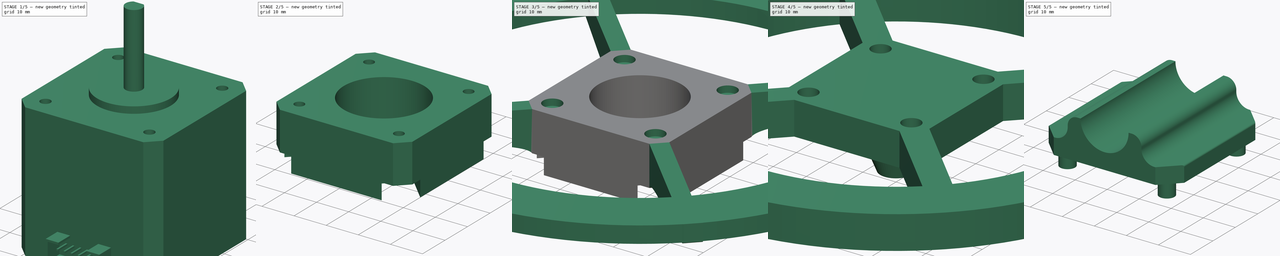
[diagram: build sequence overview — one tinted view per stage of 5, left to right]
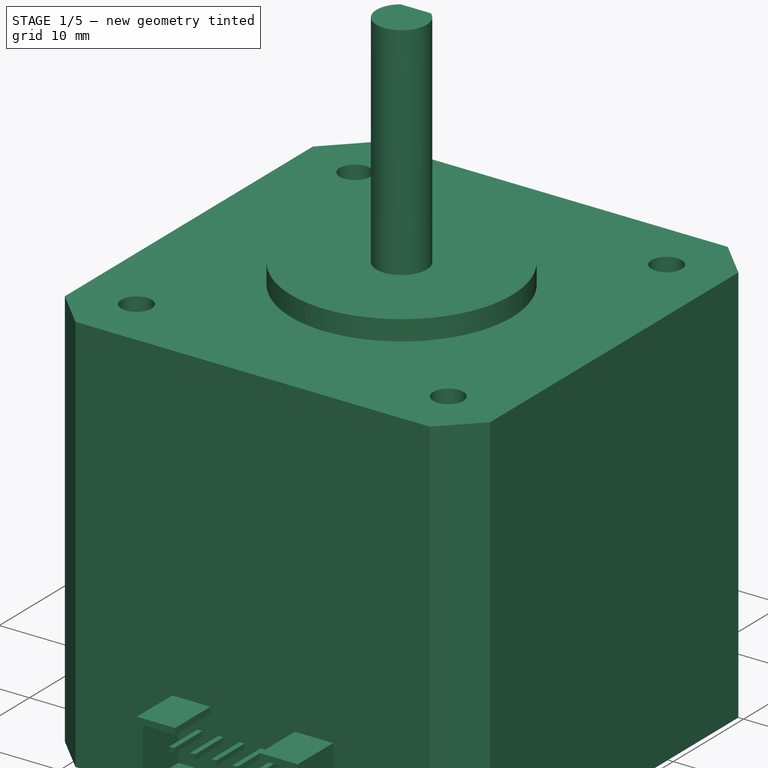
[diagram: stage 1 of 5 — iso view after this stage's code; geometry added in this stage tinted green]
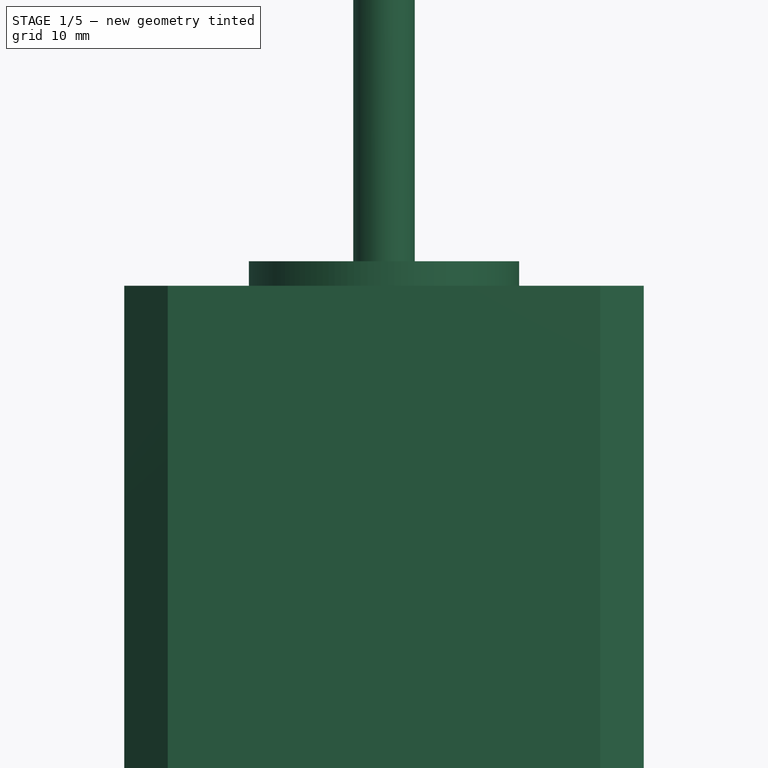
[diagram: stage 1 of 5 — front view after this stage's code; geometry added in this stage tinted green]
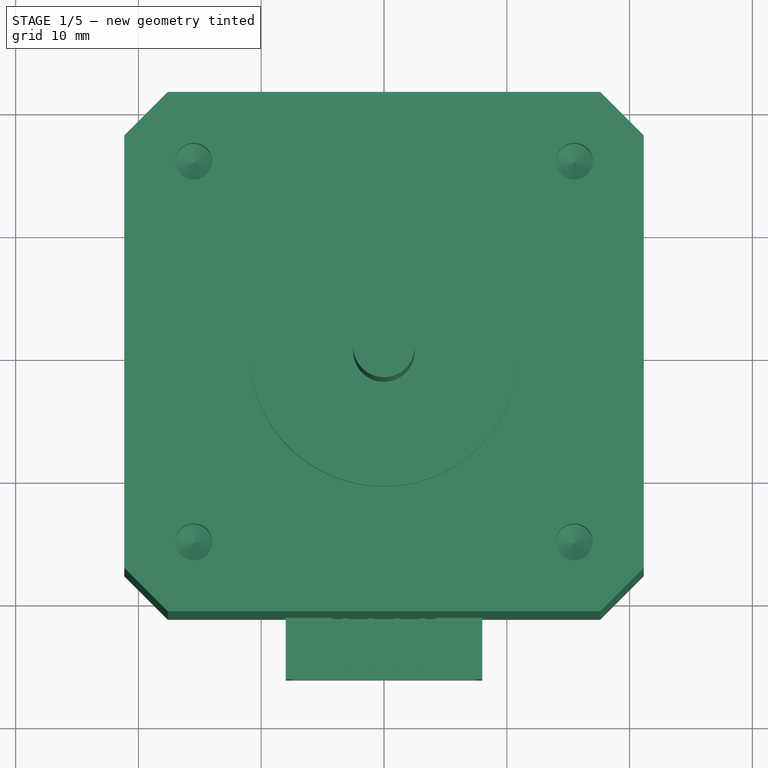
[diagram: stage 1 of 5 — top view after this stage's code; geometry added in this stage tinted green]
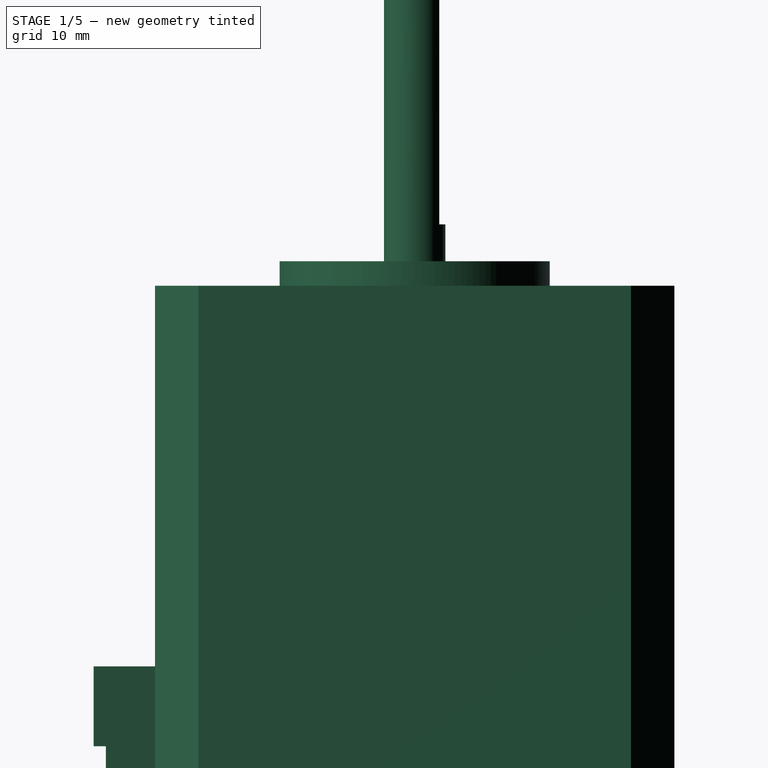
[diagram: stage 1 of 5 — right view after this stage's code; geometry added in this stage tinted green]
FCSTD DOCUMENT  (FreeCAD 0.21R33668 +26 (Git))
Label: laser-mount
License: All rights reserved
LicenseURL: http://en.wikipedia.org/wiki/All_rights_reserved
objects: Sketcher::SketchObject×37, PartDesign::Pad×17, PartDesign::Pocket×13, PartDesign::SubShapeBinder×9, PartDesign::Body×5, PartDesign::PolarPattern×5, PartDesign::Fillet×4, PartDesign::Hole×2, PartDesign::Chamfer×1, Part::FeaturePython×1, PartDesign::AdditiveLoft×1, PartDesign::Plane×1
note: 133 computed .brp shape members not serialized (recipe doc carries the construction recipe); baked Part::Feature solids carry a one-line shape summary decoded from their .brp

FEATURE [PartDesign::SubShapeBinder] Binder003
  BindCopyOnChange = 0
  BindMode = 0
  ClaimChildren = false
  Context = -> Body004 [Binder003.]
  Fuse = false
  MakeFace = true
  OffsetFill = false
  OffsetIntersection = false
  OffsetJoinType = 0
  OffsetOpenResult = false
  PartialLoad = false
  Relative = true
  Support = -> [Body003[Pad015.Face5]]
  _Version = 2
FEATURE [PartDesign::SubShapeBinder] Binder004
  BindCopyOnChange = 0
  BindMode = 0
  ClaimChildren = false
  Context = -> Body004 [Binder004.]
  Fuse = false
  MakeFace = true
  OffsetFill = false
  OffsetIntersection = false
  OffsetJoinType = 0
  OffsetOpenResult = false
  PartialLoad = false
  Relative = true
  Support = -> [Body003[Pad015.Face9]]
  _Version = 2
FEATURE [PartDesign::SubShapeBinder] Binder005
  BindCopyOnChange = 0
  BindMode = 0
  ClaimChildren = false
  Context = -> Body005 [Binder005.]
  Fuse = false
  MakeFace = true
  OffsetFill = false
  OffsetIntersection = false
  OffsetJoinType = 0
  OffsetOpenResult = false
  PartialLoad = false
  Relative = true
  Support = -> [Body003[Pad015.Face5]]
  _Version = 2
FEATURE [PartDesign::SubShapeBinder] Binder006
  BindCopyOnChange = 0
  BindMode = 0
  ClaimChildren = false
  Context = -> Body005 [Binder006.]
  Fuse = false
  MakeFace = true
  OffsetFill = false
  OffsetIntersection = false
  OffsetJoinType = 0
  OffsetOpenResult = false
  PartialLoad = false
  Relative = true
  Support = -> [Array[2.Pocket001.Face5,1.Pocket001.Face5,0.Pocket001.Face5,3.Pocket001.Face5]]
  _Version = 2
FEATURE [PartDesign::SubShapeBinder] Binder007
  BindCopyOnChange = 0
  BindMode = 0
  ClaimChildren = false
  Context = -> Body006 [Binder007.]
  Fuse = false
  MakeFace = true
  OffsetFill = false
  OffsetIntersection = false
  OffsetJoinType = 0
  OffsetOpenResult = false
  PartialLoad = false
  Relative = true
  Support = -> [Body003[Pad015.Face82]]
  _Version = 2
FEATURE [PartDesign::SubShapeBinder] Binder009
  BindCopyOnChange = 0
  BindMode = 0
  ClaimChildren = false
  Context = -> Body006 [Binder009.]
  Fuse = false
  MakeFace = true
  OffsetFill = false
  OffsetIntersection = false
  OffsetJoinType = 0
  OffsetOpenResult = false
  PartialLoad = false
  Relative = true
  Support = -> [Body005[PolarPattern004.Face26]]
  _Version = 2
FEATURE [PartDesign::SubShapeBinder] Binder010
  BindCopyOnChange = 0
  BindMode = 0
  ClaimChildren = false
  Context = -> Body006 [Binder010.]
  Fuse = false
  MakeFace = true
  OffsetFill = false
  OffsetIntersection = false
  OffsetJoinType = 0
  OffsetOpenResult = false
  PartialLoad = false
  Relative = true
  Support = -> [Body005[PolarPattern004.Face131]]
  _Version = 2
FEATURE [PartDesign::SubShapeBinder] Binder011
  BindCopyOnChange = 0
  BindMode = 0
  ClaimChildren = false
  Context = -> Body006 [Binder011.]
  Fuse = false
  MakeFace = true
  OffsetFill = false
  OffsetIntersection = false
  OffsetJoinType = 0
  OffsetOpenResult = false
  PartialLoad = false
  Relative = true
  Support = -> [Body005[Pocket010.Face62]]
  _Version = 2
FEATURE [Sketcher::SketchObject] Sketch016
  FullyConstrained = true
  MapMode = 5
  Support = -> [XY_Plane003]
  sketch-geometry (18):
    g0: LineSegment StartX=-17.6145 StartY=21.15 StartZ=0 EndX=17.6145 EndY=21.15 EndZ=0
    g1: LineSegment StartX=17.6145 StartY=21.15 StartZ=0 EndX=21.15 EndY=17.6145 EndZ=0
    g2: LineSegment StartX=21.15 StartY=17.6145 StartZ=0 EndX=21.15 EndY=-17.6145 EndZ=0
    g3: LineSegment StartX=21.15 StartY=-17.6145 StartZ=0 EndX=17.6145 EndY=-21.15 EndZ=0
    g4: LineSegment StartX=17.6145 StartY=-21.15 StartZ=0 EndX=-17.6145 EndY=-21.15 EndZ=0
    g5: LineSegment StartX=-17.6145 StartY=-21.15 StartZ=0 EndX=-21.15 EndY=-17.6145 EndZ=0
    g6: LineSegment StartX=-21.15 StartY=-17.6145 StartZ=0 EndX=-21.15 EndY=17.6145 EndZ=0
    g7: LineSegment StartX=-21.15 StartY=17.6145 StartZ=0 EndX=-17.6145 EndY=21.15 EndZ=0
    g8: LineSegment StartX=-21.15 StartY=17.6145 StartZ=0 EndX=21.15 EndY=17.6145 EndZ=0
    g9: LineSegment StartX=-17.6145 StartY=-21.15 StartZ=0 EndX=-17.6145 EndY=21.15 EndZ=0
    g10: LineSegment StartX=17.6145 StartY=21.15 StartZ=0 EndX=17.6145 EndY=-21.15 EndZ=0
    g11: LineSegment StartX=21.15 StartY=-17.6145 StartZ=0 EndX=-21.15 EndY=-17.6145 EndZ=0
    g12: GeomPoint X=-17.6145 Y=17.6145 Z=0
    g13: GeomPoint X=17.6145 Y=17.6145 Z=0
    g14: GeomPoint X=17.6145 Y=-17.6145 Z=0
    g15: GeomPoint X=-17.6145 Y=-17.6145 Z=0
    g16: LineSegment StartX=-17.6145 StartY=17.6145 StartZ=0 EndX=17.6145 EndY=-17.6145 EndZ=0
    g17: LineSegment StartX=17.6145 StartY=17.6145 StartZ=0 EndX=-17.6145 EndY=-17.6145 EndZ=0
  constraints (44):
    c: Horizontal(g0)
    c: Coincident(g1,g0)
    c: Coincident(g2,g1)
    c: Vertical(g2)
    c: Coincident(g3,g2)
    c: Coincident(g4,g3)
    c: Horizontal(g4)
    c: Coincident(g5,g4)
    c: Coincident(g6,g5)
    c: Vertical(g6)
    c: Coincident(g7,g6)
    c: Coincident(g7,g0)
    c: Coincident(g8,g6)
    c: Coincident(g8,g1)
    c: Horizontal(g8)
    c: Coincident(g9,g4)
    c: Coincident(g9,g0)
    c: Vertical(g9)
    c: Distance(g8) = 42.3
    c: Distance(g9) = 42.3
    c: Equal(g3,g5)
    c: Equal(g1,g3)
    c: Equal(g7,g1)
    c: Coincident(g10,g0)
    c: Coincident(g10,g3)
    c: Vertical(g10)
    c: Coincident(g11,g2)
    c: Coincident(g11,g5)
    c: PointOnObject(g12,g8)
    c: PointOnObject(g13,g8)
    c: PointOnObject(g14,g11)
    c: PointOnObject(g15,g9)
    c: PointOnObject(g12,g9)
    c: PointOnObject(g14,g10)
    c: PointOnObject(g15,g11)
    c: Coincident(g16,g12)
    c: Coincident(g16,g14)
    c: Coincident(g17,g13)
    c: Coincident(g17,g15)
    c: PointOnObject(g-1,g16)
    c: PointOnObject(g13,g10)
    c: PointOnObject(g-1,g17)
    c: Equal(g2,g4)
    c: Distance(g1) = 5
FEATURE [PartDesign::Pad] Pad009
  Direction = (0,0,1)
  Length = 40
  Length2 = 10
  Profile = -> Sketch016
  ReferenceAxis = -> Sketch016 [N_Axis]
  Type = 0
FEATURE [Sketcher::SketchObject] Sketch017
  FullyConstrained = true
  MapMode = 5
  Placement = pos=(0,0,40) rot=(0,0,1;0rad)
  Support = -> [Pad009]
  sketch-geometry (10):
    g0: Circle CenterX=15.5 CenterY=15.5 CenterZ=0 NormalX=0 NormalY=0 NormalZ=1 AngleXU=0 Radius=1.5
    g1: Circle CenterX=-15.5 CenterY=15.5 CenterZ=0 NormalX=0 NormalY=0 NormalZ=1 AngleXU=0 Radius=1.5
    g2: Circle CenterX=-15.5 CenterY=-15.5 CenterZ=0 NormalX=0 NormalY=0 NormalZ=1 AngleXU=0 Radius=1.5
    g3: Circle CenterX=15.5 CenterY=-15.5 CenterZ=0 NormalX=0 NormalY=0 NormalZ=1 AngleXU=0 Radius=1.5
    g4: LineSegment StartX=-15.5 StartY=15.5 StartZ=0 EndX=15.5 EndY=15.5 EndZ=0
    g5: LineSegment StartX=15.5 StartY=15.5 StartZ=0 EndX=15.5 EndY=-15.5 EndZ=0
    g6: LineSegment StartX=15.5 StartY=-15.5 StartZ=0 EndX=-15.5 EndY=-15.5 EndZ=0
    g7: LineSegment StartX=-15.5 StartY=-15.5 StartZ=0 EndX=-15.5 EndY=15.5 EndZ=0
    g8: LineSegment StartX=-15.5 StartY=15.5 StartZ=0 EndX=15.5 EndY=-15.5 EndZ=0
    g9: LineSegment StartX=15.5 StartY=15.5 StartZ=0 EndX=-15.5 EndY=-15.5 EndZ=0
  constraints (24):
    c: Diameter(g0) = 3
    c: Equal(g1,g0)
    c: Equal(g1,g2)
    c: Equal(g0,g3)
    c: Coincident(g4,g5)
    c: Coincident(g5,g6)
    c: Coincident(g6,g7)
    c: Coincident(g7,g4)
    c: Horizontal(g4)
    c: Horizontal(g6)
    c: Vertical(g5)
    c: Vertical(g7)
    c: Coincident(g4,g1)
    c: Coincident(g5,g3)
    c: Coincident(g4,g0)
    c: Coincident(g6,g2)
    c: Distance(g4) = 31
    c: Coincident(g8,g1)
    c: Coincident(g8,g3)
    c: Coincident(g9,g0)
    c: Coincident(g9,g2)
    c: PointOnObject(g-1,g8)
    c: PointOnObject(g-1,g9)
    c: Equal(g4,g5)
FEATURE [PartDesign::Hole] Hole002
  BaseFeature = -> Pad009
  CustomThreadClearance = 0
  Depth = 4.5
  DepthType = 0
  Diameter = 3
  DrillForDepth = false
  DrillPoint = 1
  DrillPointAngle = 118
  HoleCutCountersinkAngle = 90
  HoleCutCustomValues = false
  HoleCutDepth = 0
  HoleCutDiameter = 6.1
  HoleCutType = 0
  ModelThread = false
  Profile = -> Sketch017
  Tapered = false
  TaperedAngle = 90
  ThreadClass = 0
  ThreadDepth = 4.5
  ThreadDepthType = 0
  ThreadDirection = 0
  ThreadFit = 0
  ThreadSize = 0
  ThreadType = 0
  Threaded = false
  UseCustomThreadClearance = false
FEATURE [Sketcher::SketchObject] Sketch018
  ExternalGeometry = -> [Hole002]
  FullyConstrained = true
  MapMode = 5
  Support = -> [XY_Plane003]
  sketch-geometry (4):
    g0: Circle CenterX=-15.5 CenterY=15.5 CenterZ=0 NormalX=0 NormalY=0 NormalZ=1 AngleXU=0 Radius=1.5
    g1: Circle CenterX=-15.5 CenterY=-15.5 CenterZ=0 NormalX=0 NormalY=0 NormalZ=1 AngleXU=0 Radius=1.5
    g2: Circle CenterX=15.5 CenterY=-15.5 CenterZ=0 NormalX=0 NormalY=0 NormalZ=1 AngleXU=0 Radius=1.5
    g3: Circle CenterX=15.5 CenterY=15.5 CenterZ=0 NormalX=0 NormalY=0 NormalZ=1 AngleXU=0 Radius=1.5
  constraints (8):
    c: Coincident(g0,g-3)
    c: Coincident(g1,g-6)
    c: Coincident(g2,g-5)
    c: Coincident(g3,g-4)
    c: Equal(g-3,g1)
    c: Equal(g2,g-3)
    c: Equal(g-4,g0)
    c: Equal(g0,g3)
FEATURE [PartDesign::Hole] Hole003
  BaseFeature = -> Hole002
  CustomThreadClearance = 0
  Depth = 4.5
  DepthType = 0
  Diameter = 3
  DrillForDepth = false
  DrillPoint = 1
  DrillPointAngle = 118
  HoleCutCountersinkAngle = 90
  HoleCutCustomValues = false
  HoleCutDepth = 0
  HoleCutDiameter = 6.1
  HoleCutType = 0
  ModelThread = false
  Profile = -> Sketch018
  Reversed = true
  Tapered = false
  TaperedAngle = 90
  ThreadClass = 0
  ThreadDepth = 4.5
  ThreadDepthType = 0
  ThreadDirection = 0
  ThreadFit = 0
  ThreadSize = 0
  ThreadType = 0
  Threaded = false
  UseCustomThreadClearance = false
FEATURE [Sketcher::SketchObject] Sketch019
  FullyConstrained = true
  MapMode = 5
  Placement = pos=(0,0,40) rot=(0,0,1;0rad)
  Support = -> [Hole003]
  sketch-geometry (1):
    g0: Circle CenterX=0 CenterY=0 CenterZ=0 NormalX=0 NormalY=0 NormalZ=1 AngleXU=0 Radius=11
  constraints (2):
    c: Coincident(g0,g-1)
    c: Diameter(g0) = 22
FEATURE [PartDesign::Pad] Pad010
  BaseFeature = -> Hole003
  Direction = (0,0,1)
  Length = 2
  Length2 = 10
  Profile = -> Sketch019
  ReferenceAxis = -> Sketch019 [N_Axis]
  Type = 0
FEATURE [Sketcher::SketchObject] Sketch020
  FullyConstrained = true
  MapMode = 5
  Placement = pos=(0,0,42) rot=(0,0,1;0rad)
  Support = -> [Pad010]
  sketch-geometry (4):
    g0: ArcOfCircle CenterX=0 CenterY=0 CenterZ=0 NormalX=0 NormalY=0 NormalZ=1 AngleXU=0 Radius=2.5 StartAngle=2.2143 EndAngle=7.21048
    g1: LineSegment StartX=-1.5 StartY=2 StartZ=0 EndX=1.5 EndY=2 EndZ=0
    g2: GeomPoint X=0 Y=2 Z=0
    g3: GeomPoint X=0 Y=-2.5 Z=0
  constraints (10):
    c: Coincident(g0,g-1)
    c: Coincident(g1,g0)
    c: Coincident(g1,g0)
    c: Parallel(g1,g-1)
    c: Diameter(g0) = 5
    c: PointOnObject(g2,g1)
    c: PointOnObject(g2,g-2)
    c: PointOnObject(g3,g0)
    c: Distance(g3,g2) = 4.5
    c: PointOnObject(g3,g-2)
FEATURE [PartDesign::Pad] Pad011
  BaseFeature = -> Pad010
  Direction = (0,0,1)
  Length = 22
  Length2 = 10
  Profile = -> Sketch020
  ReferenceAxis = -> Sketch020 [N_Axis]
  Type = 0
FEATURE [Sketcher::SketchObject] Sketch021
  FullyConstrained = true
  MapMode = 5
  Placement = pos=(0,0,42) rot=(0,0,1;0rad)
  Support = -> [Pad010]
  sketch-geometry (1):
    g0: Circle CenterX=0 CenterY=0 CenterZ=0 NormalX=0 NormalY=0 NormalZ=1 AngleXU=0 Radius=2.5
  constraints (2):
    c: Coincident(g0,g-1)
    c: Diameter(g0) = 5
FEATURE [PartDesign::Pad] Pad012
  BaseFeature = -> Pad011
  Direction = (0,0,1)
  Length = 3
  Length2 = 10
  Profile = -> Sketch021
  ReferenceAxis = -> Sketch021 [N_Axis]
  Type = 0
FEATURE [Sketcher::SketchObject] Sketch022
  ExternalGeometry = -> [Pad012]
  FullyConstrained = true
  MapMode = 5
  Placement = pos=(0,0,0) rot=(1,0,0;3.14159rad)
  Support = -> [Pad012]
  sketch-geometry (4):
    g0: LineSegment StartX=-8 StartY=21.15 StartZ=0 EndX=8 EndY=21.15 EndZ=0
    g1: LineSegment StartX=8 StartY=21.15 StartZ=0 EndX=8 EndY=25.15 EndZ=0
    g2: LineSegment StartX=8 StartY=25.15 StartZ=0 EndX=-8 EndY=25.15 EndZ=0
    g3: LineSegment StartX=-8 StartY=25.15 StartZ=0 EndX=-8 EndY=21.15 EndZ=0
  constraints (11):
    c: Coincident(g0,g1)
    c: Coincident(g1,g2)
    c: Coincident(g2,g3)
    c: Coincident(g3,g0)
    c: Horizontal(g2)
    c: Vertical(g1)
    c: Vertical(g3)
    c: PointOnObject(g0,g-3)
    c: Symmetric(g0,g0,g-2)
    c: Distance(g2) = 16
    c: Distance(g1) = 4
FEATURE [PartDesign::Pad] Pad013
  BaseFeature = -> Pad012
  Direction = (0,0,-1)
  Length = 2.5
  Length2 = 10
  Profile = -> Sketch022
  ReferenceAxis = -> Sketch022 [N_Axis]
  Reversed = true
  Type = 0
FEATURE [Sketcher::SketchObject] Sketch023
  ExternalGeometry = -> [Pad013]
  FullyConstrained = true
  MapMode = 5
  Placement = pos=(0,-21.15,0) rot=(1,0,0;1.5708rad)
  Support = -> [Pad013]
  sketch-geometry (14):
    g0: LineSegment StartX=-4.2 StartY=9 StartZ=0 EndX=-8 EndY=9 EndZ=0
    g1: LineSegment StartX=-8 StartY=9 StartZ=0 EndX=-8 EndY=2.5 EndZ=0
    g2: LineSegment StartX=-8 StartY=2.5 StartZ=0 EndX=8 EndY=2.5 EndZ=0
    g3: LineSegment StartX=8 StartY=2.5 StartZ=0 EndX=8 EndY=9 EndZ=0
    g4: LineSegment StartX=8 StartY=9 StartZ=0 EndX=4.2 EndY=9 EndZ=0
    g5: LineSegment StartX=4.2 StartY=9 StartZ=0 EndX=4.2 EndY=8.4 EndZ=0
    g6: LineSegment StartX=4.2 StartY=8.4 StartZ=0 EndX=7.4 EndY=8.4 EndZ=0
    g7: LineSegment StartX=7.4 StartY=8.4 StartZ=0 EndX=7.4 EndY=3.1 EndZ=0
    g8: LineSegment StartX=7.4 StartY=3.1 StartZ=0 EndX=-7.4 EndY=3.1 EndZ=0
    g9: LineSegment StartX=-7.4 StartY=3.1 StartZ=0 EndX=-7.4 EndY=8.4 EndZ=0
    g10: LineSegment StartX=-7.4 StartY=8.4 StartZ=0 EndX=-4.2 EndY=8.4 EndZ=0
    g11: LineSegment StartX=-4.2 StartY=8.4 StartZ=0 EndX=-4.2 EndY=9 EndZ=0
    g12: LineSegment StartX=7.4 StartY=3.1 StartZ=0 EndX=7.4 EndY=2.5 EndZ=0
    g13: LineSegment StartX=7.4 StartY=3.1 StartZ=0 EndX=8 EndY=3.1 EndZ=0
  constraints (39):
    c: Horizontal(g0)
    c: Coincident(g1,g0)
    c: Coincident(g1,g-3)
    c: Coincident(g2,g1)
    c: Coincident(g2,g-3)
    c: Coincident(g3,g2)
    c: Coincident(g4,g3)
    c: Horizontal(g4)
    c: Equal(g4,g0)
    c: Vertical(g1)
    c: Vertical(g3)
    c: Equal(g1,g3)
    c: Distance(g3) = 6.5
    c: Distance(g4) = 3.8
    c: Coincident(g5,g4)
    c: Vertical(g5)
    c: Coincident(g6,g5)
    c: Horizontal(g6)
    c: Coincident(g7,g6)
    c: Vertical(g7)
    c: Coincident(g8,g7)
    c: Horizontal(g8)
    c: Coincident(g9,g8)
    c: Vertical(g9)
    c: Coincident(g10,g9)
    c: Coincident(g11,g10)
    c: Coincident(g11,g0)
    c: Vertical(g11)
    c: Horizontal(g10)
    c: Distance(g5) = 0.6
    c: Symmetric(g9,g6,g-2)
    c: Coincident(g12,g7)
    c: PointOnObject(g12,g2)
    c: Vertical(g12)
    c: Equal(g12,g5)
    c: Coincident(g13,g7)
    c: PointOnObject(g13,g3)
    c: Horizontal(g13)
    c: Equal(g13,g5)
FEATURE [PartDesign::Pad] Pad014
  BaseFeature = -> Pad013
  Direction = (0,-1,2e-16)
  Length = 5
  Length2 = 10
  Profile = -> Sketch023
  ReferenceAxis = -> Sketch023 [N_Axis]
  Type = 0
FEATURE [Sketcher::SketchObject] Sketch024
  ExternalGeometry = -> [Pad014]
  FullyConstrained = true
  MapMode = 5
  Placement = pos=(0,-21.15,0) rot=(1,0,0;1.5708rad)
  Support = -> [Pad014]
  sketch-geometry (30):
    g0: LineSegment StartX=-5.5 StartY=6.6 StartZ=0 EndX=-5 EndY=6.6 EndZ=0
    g1: LineSegment StartX=-5 StartY=6.6 StartZ=0 EndX=-5 EndY=6.1 EndZ=0
    g2: LineSegment StartX=-5 StartY=6.1 StartZ=0 EndX=-5.5 EndY=6.1 EndZ=0
    g3: LineSegment StartX=-5.5 StartY=6.1 StartZ=0 EndX=-5.5 EndY=6.6 EndZ=0
    g4: LineSegment StartX=-3.4 StartY=6.6 StartZ=0 EndX=-2.9 EndY=6.6 EndZ=0
    g5: LineSegment StartX=-2.9 StartY=6.6 StartZ=0 EndX=-2.9 EndY=6.1 EndZ=0
    g6: LineSegment StartX=-2.9 StartY=6.1 StartZ=0 EndX=-3.4 EndY=6.1 EndZ=0
    g7: LineSegment StartX=-3.4 StartY=6.1 StartZ=0 EndX=-3.4 EndY=6.6 EndZ=0
    g8: LineSegment StartX=-1.3 StartY=6.6 StartZ=0 EndX=-0.8 EndY=6.6 EndZ=0
    g9: LineSegment StartX=-0.8 StartY=6.6 StartZ=0 EndX=-0.8 EndY=6.1 EndZ=0
    g10: LineSegment StartX=-0.8 StartY=6.1 StartZ=0 EndX=-1.3 EndY=6.1 EndZ=0
    g11: LineSegment StartX=-1.3 StartY=6.1 StartZ=0 EndX=-1.3 EndY=6.6 EndZ=0
    g12: LineSegment StartX=0.8 StartY=6.6 StartZ=0 EndX=1.3 EndY=6.6 EndZ=0
    g13: LineSegment StartX=1.3 StartY=6.6 StartZ=0 EndX=1.3 EndY=6.1 EndZ=0
    g14: LineSegment StartX=1.3 StartY=6.1 StartZ=0 EndX=0.8 EndY=6.1 EndZ=0
    g15: LineSegment StartX=0.8 StartY=6.1 StartZ=0 EndX=0.8 EndY=6.6 EndZ=0
    g16: LineSegment StartX=2.9 StartY=6.6 StartZ=0 EndX=3.4 EndY=6.6 EndZ=0
    g17: LineSegment StartX=3.4 StartY=6.6 StartZ=0 EndX=3.4 EndY=6.1 EndZ=0
    g18: LineSegment StartX=3.4 StartY=6.1 StartZ=0 EndX=2.9 EndY=6.1 EndZ=0
    g19: LineSegment StartX=2.9 StartY=6.1 StartZ=0 EndX=2.9 EndY=6.6 EndZ=0
    g20: LineSegment StartX=5 StartY=6.6 StartZ=0 EndX=5.5 EndY=6.6 EndZ=0
    g21: LineSegment StartX=5.5 StartY=6.6 StartZ=0 EndX=5.5 EndY=6.1 EndZ=0
    g22: LineSegment StartX=5.5 StartY=6.1 StartZ=0 EndX=5 EndY=6.1 EndZ=0
    g23: LineSegment StartX=5 StartY=6.1 StartZ=0 EndX=5 EndY=6.6 EndZ=0
    g24: LineSegment StartX=-7.4 StartY=6.1 StartZ=0 EndX=7.4 EndY=6.1 EndZ=0
    g25: LineSegment StartX=-5 StartY=6.6 StartZ=0 EndX=-3.4 EndY=6.6 EndZ=0
    g26: LineSegment StartX=-2.9 StartY=6.6 StartZ=0 EndX=-1.3 EndY=6.6 EndZ=0
    g27: LineSegment StartX=-0.8 StartY=6.6 StartZ=0 EndX=0.8 EndY=6.6 EndZ=0
    g28: LineSegment StartX=1.3 StartY=6.6 StartZ=0 EndX=2.9 EndY=6.6 EndZ=0
    g29: LineSegment StartX=3.4 StartY=6.6 StartZ=0 EndX=5 EndY=6.6 EndZ=0
  constraints (85):
    c: Coincident(g0,g1)
    c: Coincident(g1,g2)
    c: Coincident(g2,g3)
    c: Coincident(g3,g0)
    c: Horizontal(g0)
    c: Horizontal(g2)
    c: Vertical(g1)
    c: Vertical(g3)
    c: Coincident(g4,g5)
    c: Coincident(g5,g6)
    c: Coincident(g6,g7)
    c: Coincident(g7,g4)
    c: Horizontal(g4)
    c: Horizontal(g6)
    c: Vertical(g5)
    c: Vertical(g7)
    c: Coincident(g8,g9)
    c: Coincident(g9,g10)
    c: Coincident(g10,g11)
    c: Coincident(g11,g8)
    c: Horizontal(g8)
    c: Horizontal(g10)
    c: Vertical(g9)
    c: Vertical(g11)
    c: Coincident(g12,g13)
    c: Coincident(g13,g14)
    c: Coincident(g14,g15)
    c: Coincident(g15,g12)
    c: Horizontal(g12)
    c: Horizontal(g14)
    c: Vertical(g13)
    c: Vertical(g15)
    c: Coincident(g16,g17)
    c: Coincident(g17,g18)
    c: Coincident(g18,g19)
    c: Coincident(g19,g16)
    c: Horizontal(g16)
    c: Horizontal(g18)
    c: Vertical(g17)
    c: Vertical(g19)
    c: Coincident(g20,g21)
    c: Coincident(g21,g22)
    c: Coincident(g22,g23)
    c: Coincident(g23,g20)
    c: Horizontal(g20)
    c: Horizontal(g22)
    c: Vertical(g21)
    c: Vertical(g23)
    c: Equal(g20,g21)
    c: Equal(g16,g17)
    c: Equal(g12,g13)
    c: Equal(g8,g9)
    c: Equal(g4,g5)
    c: Equal(g0,g1)
    c: Equal(g1,g5)
    c: Equal(g5,g9)
    c: Equal(g9,g13)
    c: Equal(g13,g17)
    c: Equal(g17,g21)
    c: PointOnObject(g2,g24)
    c: PointOnObject(g6,g24)
    c: PointOnObject(g10,g24)
    c: PointOnObject(g24,g-4)
    c: Distance(g0) = 0.5
    c: Coincident(g25,g0)
    c: Coincident(g25,g4)
    c: Horizontal(g25)
    c: Coincident(g26,g4)
    c: Coincident(g26,g8)
    c: Coincident(g27,g8)
    c: Coincident(g27,g12)
    c: Horizontal(g27)
    c: Coincident(g28,g12)
    c: Coincident(g28,g16)
    c: Horizontal(g28)
    c: Coincident(g29,g16)
    c: Coincident(g29,g20)
    c: Equal(g25,g26)
    c: Equal(g26,g27)
    c: Equal(g27,g28)
    c: Equal(g28,g29)
    c: Distance(g25) = 1.6
    c: Distance(g24,g-5) = 3
    c: Symmetric(g2,g21,g-2)
    c: PointOnObject(g24,g-3)
FEATURE [PartDesign::Pad] Pad015
  BaseFeature = -> Pad014
  Direction = (0,-1,2e-16)
  Length = 4
  Length2 = 10
  Profile = -> Sketch024
  ReferenceAxis = -> Sketch024 [N_Axis]
  Type = 0
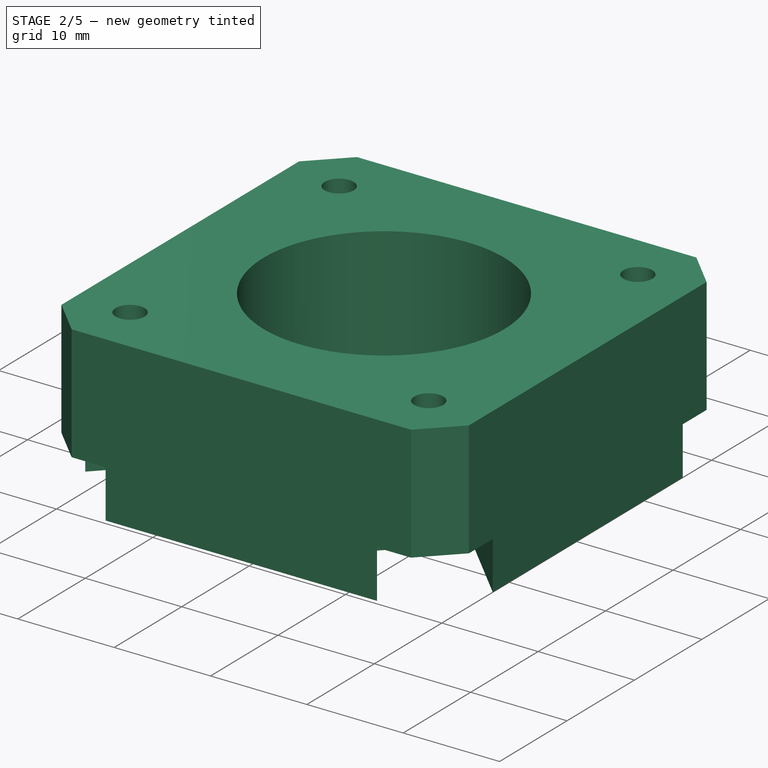
[diagram: stage 2 of 5 — iso view after this stage's code; geometry added in this stage tinted green]
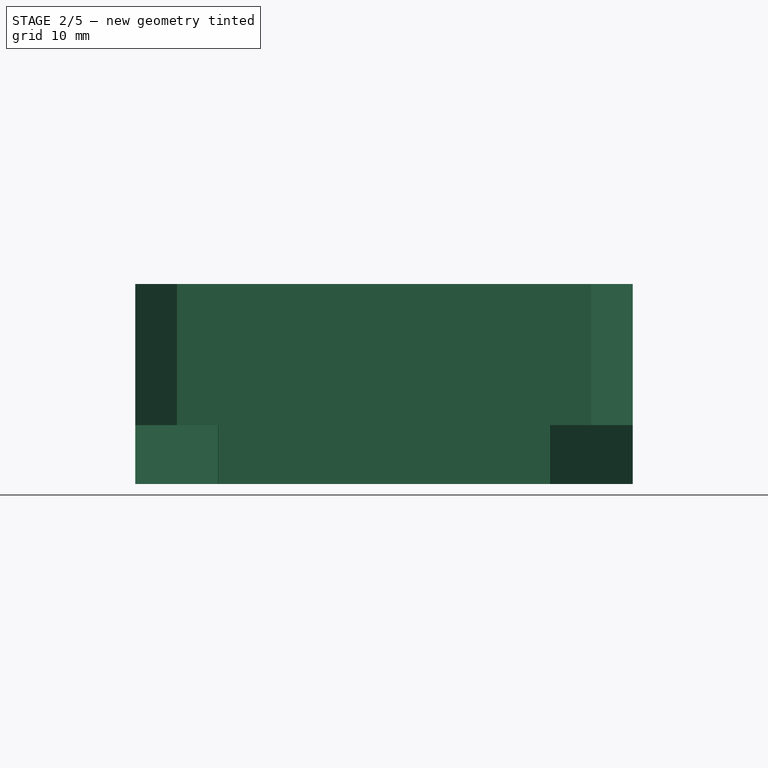
[diagram: stage 2 of 5 — front view after this stage's code; geometry added in this stage tinted green]
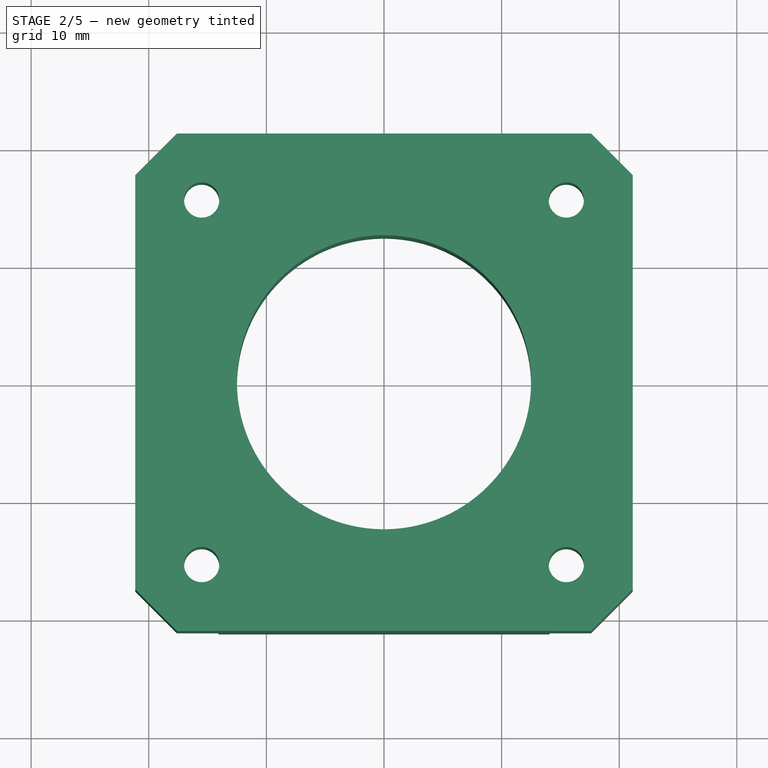
[diagram: stage 2 of 5 — top view after this stage's code; geometry added in this stage tinted green]
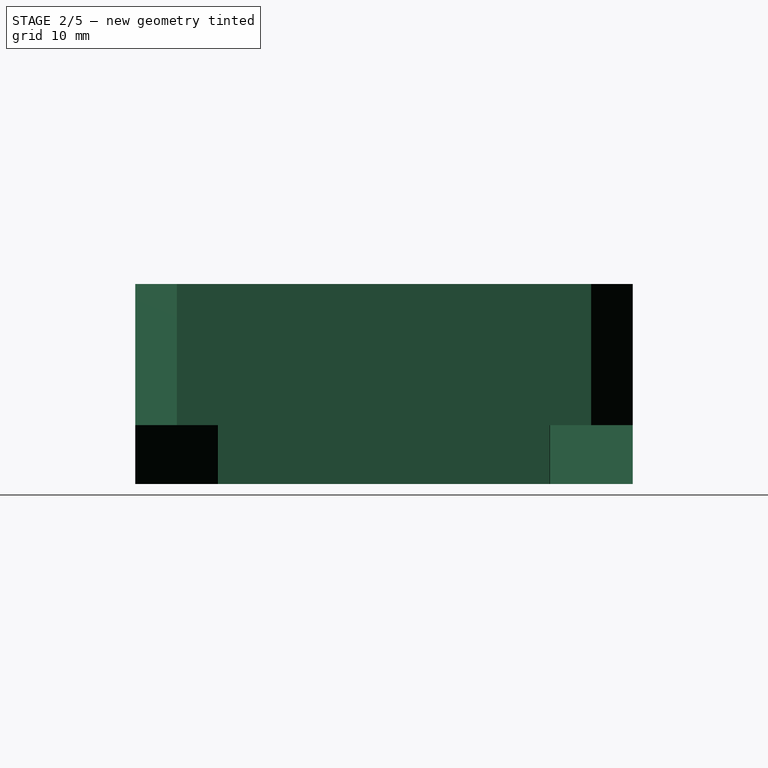
[diagram: stage 2 of 5 — right view after this stage's code; geometry added in this stage tinted green]
FEATURE [PartDesign::Body] Body003  label="NEMA-17-Motor-4401"
  Group = -> [Sketch016,Pad009,Sketch017,Hole002,Sketch018,Hole003,Sketch019,Pad010,Sketch020,Pad011,Sketch021,Pad012,Sketch022,Pad013,Sketch023,Pad014,Sketch024,Pad015]
  Origin = -> Origin003
  Tip = -> Pad015
FEATURE [Sketcher::SketchObject] Sketch025
  ExternalGeometry = -> [Binder003]
  FullyConstrained = true
  MapMode = 5
  Placement = pos=(0,0,40) rot=(0,0,1;0rad)
  Support = -> [Binder003]
  expr: Constraints[14] = cos(45) * 20
  sketch-geometry (9):
    g0: LineSegment StartX=7.03947 StartY=-14.1105 StartZ=0 EndX=14.1105 EndY=-7.03947 EndZ=0
    g1: LineSegment StartX=14.1105 StartY=-7.03947 StartZ=0 EndX=32.9178 EndY=-25.8467 EndZ=0
    g2: LineSegment StartX=7.03947 StartY=-14.1105 StartZ=0 EndX=25.8467 EndY=-32.9178 EndZ=0
    g3: LineSegment StartX=25.8467 StartY=-32.9178 StartZ=0 EndX=32.9178 EndY=-25.8467 EndZ=0
    g4: LineSegment StartX=14.1105 StartY=-7.03947 StartZ=0 EndX=21.15 EndY=0 EndZ=0
    g5: LineSegment StartX=7.03947 StartY=-14.1105 StartZ=0 EndX=-1.8e-15 EndY=-21.15 EndZ=0
    g6: Circle CenterX=15.5 CenterY=-15.5 CenterZ=0 NormalX=0 NormalY=0 NormalZ=1 AngleXU=0 Radius=2
    g7: LineSegment StartX=17 StartY=-15.5 StartZ=0 EndX=17.5 EndY=-15.5 EndZ=0
    g8: LineSegment StartX=15.5 StartY=-15.5 StartZ=0 EndX=17 EndY=-15.5 EndZ=0
  constraints (23):
    c: Coincident(g1,g0)
    c: Coincident(g2,g0)
    c: Coincident(g3,g2)
    c: Coincident(g3,g1)
    c: Parallel(g3,g0)
    c: Parallel(g1,g2)
    c: Perpendicular(g1,g0)
    c: Distance(g0) = 10
    c: Angle(g-4,g1) = 0.785398
    c: Coincident(g5,g0)
    c: Symmetric(g-5,g-6,g5)
    c: Symmetric(g-6,g-4,g4)
    c: Equal(g4,g5)
    c: Tangent(g4,g0) = -1.5708
    c: Distance(g-6,g3) = 14.1421
    c: Coincident(g6,g-3)
    c: PointOnObject(g7,g-3)
    c: PointOnObject(g7,g6)
    c: Horizontal(g7)
    c: Distance(g7) = 0.5
    c: Coincident(g8,g6)
    c: Coincident(g8,g7)
    c: Horizontal(g8)
FEATURE [PartDesign::Pad] Pad016
  Direction = (0,0,1)
  Length = 5
  Length2 = 10
  Profile = -> Sketch025
  ReferenceAxis = -> Sketch025 [N_Axis]
  Type = 0
FEATURE [Sketcher::SketchObject] Sketch026
  ExternalGeometry = -> [Pad016,Binder004]
  FullyConstrained = true
  MapMode = 5
  Placement = pos=(-3.53553,-3.53553,0) rot=(0.862856,-0.357407,-0.357407;1.71777rad)
  Support = -> [Pad016]
  expr: Constraints[6] = cos(45) * 20
  sketch-geometry (5):
    g0: LineSegment StartX=27.4106 StartY=40 StartZ=0 EndX=45.8579 EndY=5 EndZ=0
    g1: LineSegment StartX=27.4106 StartY=40 StartZ=0 EndX=41.5528 EndY=40 EndZ=0
    g2: LineSegment StartX=60 StartY=5 StartZ=0 EndX=60 EndY=0 EndZ=0
    g3: LineSegment StartX=45.8579 StartY=5 StartZ=0 EndX=60 EndY=5 EndZ=0
    g4: LineSegment StartX=41.5528 StartY=40 StartZ=0 EndX=60 EndY=5 EndZ=0
  constraints (13):
    c: Coincident(g0,g-4)
    c: Coincident(g1,g0)
    c: Coincident(g1,g-3)
    c: Vertical(g2)
    c: PointOnObject(g2,g-1)
    c: Distance(g2) = 5
    c: Distance(g0,g2) = 14.1421
    c: Coincident(g3,g0)
    c: Horizontal(g3)
    c: Distance(g-1,g2) = 60
    c: Coincident(g4,g1)
    c: Coincident(g4,g3)
    c: Coincident(g3,g2)
FEATURE [PartDesign::Pad] Pad017
  BaseFeature = -> Pad016
  Direction = (-0.707107,-0.707107,0)
  Length = 10
  Length2 = 10
  Profile = -> Sketch026
  ReferenceAxis = -> Sketch026 [N_Axis]
  Reversed = true
  Type = 0
FEATURE [PartDesign::Chamfer] Chamfer001
  Angle = 45
  Base = -> Pad017 [Edge15]
  BaseFeature = -> Pad017
  ChamferType = 0
  FlipDirection = false
  Size = 4.9
  Size2 = 1
  SupportTransform = false
  UseAllEdges = false
FEATURE [PartDesign::Fillet] Fillet001
  Base = -> Chamfer001 [Edge10]
  BaseFeature = -> Chamfer001
  Radius = 11
  SupportTransform = false
  UseAllEdges = false
FEATURE [Sketcher::SketchObject] Sketch028
  ExternalGeometry = -> [Fillet001]
  FullyConstrained = true
  MapMode = 5
  Placement = pos=(4e-16,-1e-16,5) rot=(1,0,0;3.14159rad)
  Support = -> [Fillet001]
  sketch-geometry (3):
    g0: Circle CenterX=37.4264 CenterY=37.4264 CenterZ=0 NormalX=0 NormalY=0 NormalZ=1 AngleXU=0 Radius=1.75
    g1: LineSegment StartX=37.4264 StartY=37.4264 StartZ=0 EndX=33.8909 EndY=40.9619 EndZ=0
    g2: LineSegment StartX=37.4264 StartY=37.4264 StartZ=0 EndX=42.4264 EndY=42.4264 EndZ=0
  constraints (7):
    c: Coincident(g1,g0)
    c: Coincident(g2,g0)
    c: Perpendicular(g-3,g2)
    c: Perpendicular(g-5,g1)
    c: Symmetric(g-5,g-4,g2)
    c: Symmetric(g-5,g-6,g1)
    c: Diameter(g0) = 3.5
FEATURE [PartDesign::Pocket] Pocket
  BaseFeature = -> Fillet001
  Direction = (1e-16,0,1)
  Length = 22
  Length2 = 5
  Profile = -> Sketch028
  ReferenceAxis = -> Sketch028 [N_Axis]
  Type = 0
FEATURE [Sketcher::SketchObject] Sketch029
  AttachmentOffset = pos=(0,0,-9) rot=(0,0,1;0rad)
  ExternalGeometry = -> [Pocket]
  FullyConstrained = true
  MapMode = 5
  Placement = pos=(1e-15,-1e-16,14) rot=(1,0,0;3.14159rad)
  Support = -> [Pocket]
  sketch-geometry (1):
    g0: Circle CenterX=37.4264 CenterY=37.4264 CenterZ=0 NormalX=0 NormalY=0 NormalZ=1 AngleXU=0 Radius=2.75
  constraints (2):
    c: Coincident(g0,g-3)
    c: Diameter(g0) = 5.5
FEATURE [PartDesign::Pocket] Pocket001
  BaseFeature = -> Pocket
  Direction = (1e-16,0,1)
  Length = 13
  Length2 = 5
  Profile = -> Sketch029
  ReferenceAxis = -> Sketch029 [N_Axis]
  Type = 0
FEATURE [PartDesign::Body] Body004  label="Support-Beam"
  Group = -> [Binder003,Sketch025,Pad016,Sketch026,Binder004,Pad017,Chamfer001,Fillet001,Sketch028,Pocket,Sketch029,Pocket001]
  Origin = -> Origin004
  Tip = -> Pocket001
FEATURE [Part::FeaturePython] Array  label="Support-Beams"  # Draft array (typed FeaturePython)
  AlwaysSyncPlacement = false
  Angle = 360
  ArrayType = 1
  Axis = (0,0,1)
  Base = -> Body004
  Center = (0,0,0)
  Count = 4
  ExpandArray = false
  Fuse = false
  IntervalAxis = (0,0,0)
  IntervalX = (50,0,0)
  IntervalY = (0,50,0)
  IntervalZ = (0,0,50)
  NumberCircles = 3
  NumberPolar = 4
  NumberX = 2
  NumberY = 2
  NumberZ = 1
  PlacementList = 4 placements: [(0,0,0),(0,0,0),(0,0,0),(0,0,0)]
  RadialDistance = 50
  ScaleList = (4) [(1,1,1),(1,1,1),(1,1,1),(1,1,1)]
  Symmetry = 1
  TangentialDistance = 25
FEATURE [Sketcher::SketchObject] Sketch031
  ExternalGeometry = -> [Binder005,Binder006]
  FullyConstrained = true
  MapMode = 5
  Placement = pos=(0,0,40) rot=(0,0,1;0rad)
  Support = -> [Binder005]
  sketch-geometry (17):
    g0: LineSegment StartX=-7.03947 StartY=14.1105 StartZ=0 EndX=-14.0789 EndY=21.15 EndZ=0
    g1: LineSegment StartX=-14.0789 StartY=21.15 StartZ=0 EndX=14.0789 EndY=21.15 EndZ=0
    g2: LineSegment StartX=14.0789 StartY=21.15 StartZ=0 EndX=7.03947 EndY=14.1105 EndZ=0
    g3: LineSegment StartX=7.03947 StartY=14.1105 StartZ=0 EndX=14.1105 EndY=7.03947 EndZ=0
    g4: LineSegment StartX=14.1105 StartY=7.03947 StartZ=0 EndX=21.15 EndY=14.0789 EndZ=0
    g5: LineSegment StartX=21.15 StartY=14.0789 StartZ=0 EndX=21.15 EndY=-14.0789 EndZ=0
    g6: LineSegment StartX=21.15 StartY=-14.0789 StartZ=0 EndX=14.1105 EndY=-7.03947 EndZ=0
    g7: LineSegment StartX=14.1105 StartY=-7.03947 StartZ=0 EndX=7.03947 EndY=-14.1105 EndZ=0
    g8: LineSegment StartX=7.03947 StartY=-14.1105 StartZ=0 EndX=14.0789 EndY=-21.15 EndZ=0
    g9: LineSegment StartX=14.0789 StartY=-21.15 StartZ=0 EndX=-14.0789 EndY=-21.15 EndZ=0
    g10: LineSegment StartX=-14.0789 StartY=-21.15 StartZ=0 EndX=-7.03947 EndY=-14.1105 EndZ=0
    g11: LineSegment StartX=-7.03947 StartY=-14.1105 StartZ=0 EndX=-14.1105 EndY=-7.03947 EndZ=0
    g12: LineSegment StartX=-14.1105 StartY=-7.03947 StartZ=0 EndX=-21.15 EndY=-14.0789 EndZ=0
    g13: LineSegment StartX=-21.15 StartY=-14.0789 StartZ=0 EndX=-21.15 EndY=14.0789 EndZ=0
    g14: LineSegment StartX=-21.15 StartY=14.0789 StartZ=0 EndX=-14.1105 EndY=7.03947 EndZ=0
    g15: LineSegment StartX=-14.1105 StartY=7.03947 StartZ=0 EndX=-7.03947 EndY=14.1105 EndZ=0
    g16: Circle CenterX=0 CenterY=0 CenterZ=0 NormalX=0 NormalY=0 NormalZ=1 AngleXU=0 Radius=12.5
  constraints (42):
    c: Coincident(g0,g-19)
    c: PointOnObject(g0,g-4)
    c: Coincident(g1,g0)
    c: PointOnObject(g1,g-4)
    c: Coincident(g2,g-7)
    c: Coincident(g3,g2)
    c: Coincident(g3,g-7)
    c: Coincident(g4,g3)
    c: PointOnObject(g4,g-6)
    c: Coincident(g5,g4)
    c: Vertical(g5)
    c: Coincident(g6,g5)
    c: Coincident(g6,g-9)
    c: Coincident(g7,g6)
    c: Coincident(g7,g-10)
    c: Coincident(g8,g7)
    c: PointOnObject(g8,g-10)
    c: Coincident(g9,g8)
    c: PointOnObject(g9,g-11)
    c: Horizontal(g9)
    c: Coincident(g10,g9)
    c: Coincident(g10,g-14)
    c: Coincident(g11,g10)
    c: Coincident(g11,g-15)
    c: Coincident(g12,g11)
    c: PointOnObject(g12,g-15)
    c: Coincident(g13,g12)
    c: PointOnObject(g13,g-16)
    c: Vertical(g13)
    c: Coincident(g14,g13)
    c: Coincident(g14,g-18)
    c: Coincident(g15,g14)
    c: Coincident(g15,g0)
    c: PointOnObject(g2,g-5)
    c: Coincident(g1,g2)
    c: PointOnObject(g0,g-19)
    c: PointOnObject(g13,g-17)
    c: PointOnObject(g9,g-13)
    c: PointOnObject(g5,g-12)
    c: PointOnObject(g5,g-8)
    c: Coincident(g16,g-3)
    c: Diameter(g16) = 25
FEATURE [PartDesign::Pad] Pad018
  Direction = (0,0,1)
  Length = 5
  Length2 = 10
  Profile = -> Sketch031
  ReferenceAxis = -> Sketch031 [N_Axis]
  Type = 0
FEATURE [Sketcher::SketchObject] Sketch032
  ExternalGeometry = -> [Binder005,Pad018]
  FullyConstrained = true
  MapMode = 5
  Placement = pos=(0,0,45) rot=(0,0,1;0rad)
  Support = -> [Pad018]
  sketch-geometry (13):
    g0: LineSegment StartX=-21.15 StartY=17.6145 StartZ=0 EndX=-17.6145 EndY=21.15 EndZ=0
    g1: LineSegment StartX=-17.6145 StartY=21.15 StartZ=0 EndX=17.6145 EndY=21.15 EndZ=0
    g2: LineSegment StartX=17.6145 StartY=21.15 StartZ=0 EndX=21.15 EndY=17.6145 EndZ=0
    g3: LineSegment StartX=21.15 StartY=17.6145 StartZ=0 EndX=21.15 EndY=-17.6145 EndZ=0
    g4: LineSegment StartX=21.15 StartY=-17.6145 StartZ=0 EndX=17.6145 EndY=-21.15 EndZ=0
    g5: LineSegment StartX=17.6145 StartY=-21.15 StartZ=0 EndX=-17.6145 EndY=-21.15 EndZ=0
    g6: LineSegment StartX=-17.6145 StartY=-21.15 StartZ=0 EndX=-21.15 EndY=-17.6145 EndZ=0
    g7: LineSegment StartX=-21.15 StartY=-17.6145 StartZ=0 EndX=-21.15 EndY=17.6145 EndZ=0
    g8: Circle CenterX=-15.5 CenterY=15.5 CenterZ=0 NormalX=0 NormalY=0 NormalZ=1 AngleXU=0 Radius=1.5
    g9: Circle CenterX=15.5 CenterY=15.5 CenterZ=0 NormalX=0 NormalY=0 NormalZ=1 AngleXU=0 Radius=1.5
    g10: Circle CenterX=15.5 CenterY=-15.5 CenterZ=0 NormalX=0 NormalY=0 NormalZ=1 AngleXU=0 Radius=1.5
    g11: Circle CenterX=-15.5 CenterY=-15.5 CenterZ=0 NormalX=0 NormalY=0 NormalZ=1 AngleXU=0 Radius=1.5
    g12: Circle CenterX=0 CenterY=0 CenterZ=0 NormalX=0 NormalY=0 NormalZ=1 AngleXU=0 Radius=12.5
  constraints (26):
    c: Coincident(g0,g-4)
    c: Coincident(g0,g-6)
    c: Coincident(g1,g0)
    c: Coincident(g1,g-6)
    c: Coincident(g2,g1)
    c: Coincident(g2,g-5)
    c: Coincident(g3,g2)
    c: Coincident(g3,g-5)
    c: Coincident(g4,g3)
    c: Coincident(g4,g-3)
    c: Coincident(g5,g4)
    c: Coincident(g5,g-3)
    c: Coincident(g6,g5)
    c: Coincident(g6,g-4)
    c: Coincident(g7,g6)
    c: Coincident(g7,g0)
    c: Coincident(g8,g-7)
    c: Tangent(g8,g-7)
    c: Coincident(g9,g-8)
    c: Tangent(g9,g-8)
    c: Coincident(g10,g-9)
    c: Tangent(g10,g-9)
    c: Coincident(g11,g-10)
    c: Tangent(g11,g-10)
    c: Coincident(g12,g-11)
    c: Equal(g12,g-11)
FEATURE [PartDesign::Pad] Pad019
  BaseFeature = -> Pad018
  Direction = (0,0,1)
  Length = 12
  Length2 = 10
  Profile = -> Sketch032
  ReferenceAxis = -> Sketch032 [N_Axis]
  Type = 0
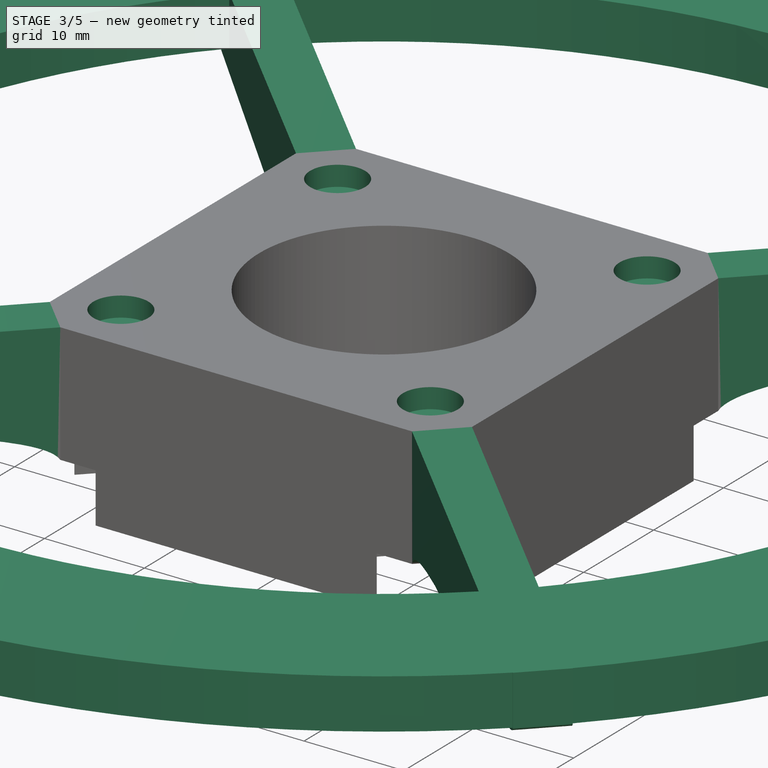
[diagram: stage 3 of 5 — iso view after this stage's code; geometry added in this stage tinted green]
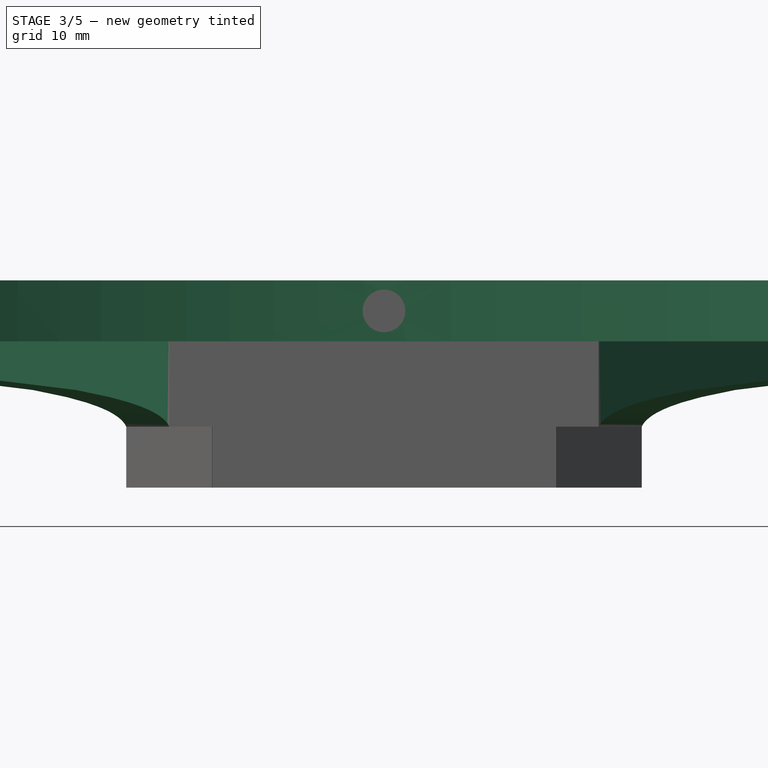
[diagram: stage 3 of 5 — front view after this stage's code; geometry added in this stage tinted green]
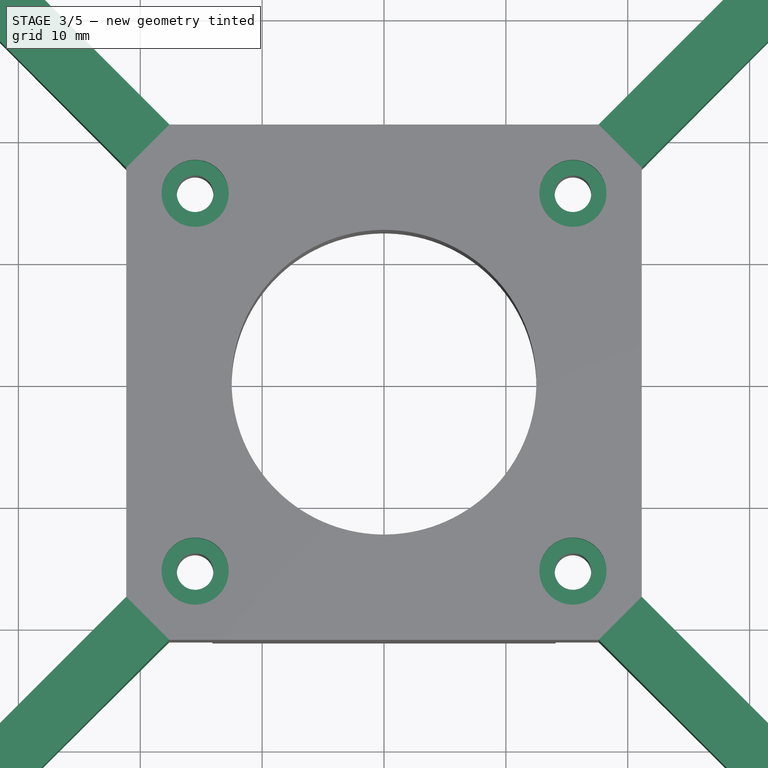
[diagram: stage 3 of 5 — top view after this stage's code; geometry added in this stage tinted green]
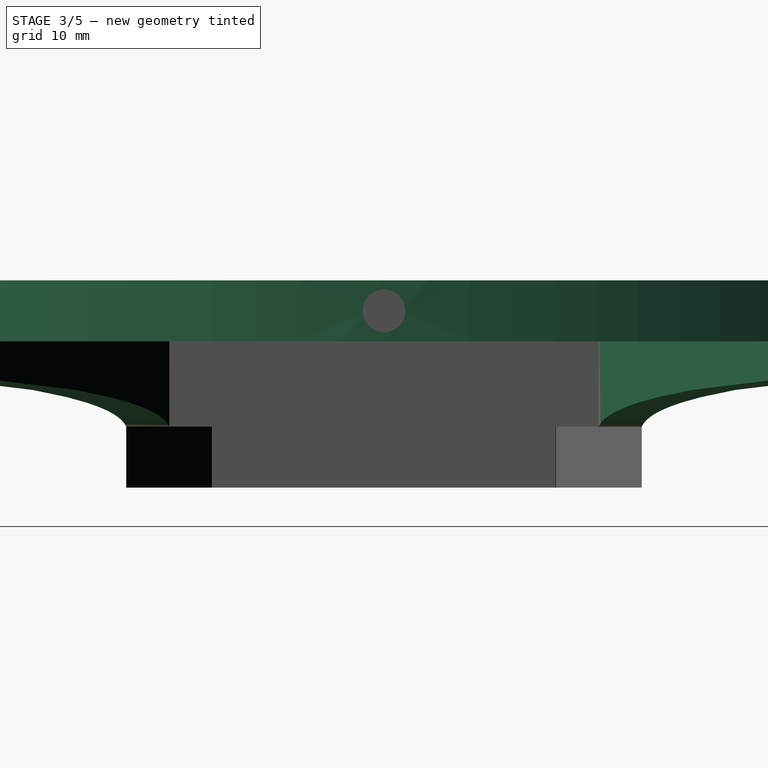
[diagram: stage 3 of 5 — right view after this stage's code; geometry added in this stage tinted green]
FEATURE [Sketcher::SketchObject] Sketch036
  ExternalGeometry = -> [Pad019]
  FullyConstrained = true
  MapMode = 5
  Placement = pos=(0,0,57) rot=(0,0,1;0rad)
  Support = -> [Pad019]
  sketch-geometry (4):
    g0: Circle CenterX=15.5 CenterY=-15.5 CenterZ=0 NormalX=0 NormalY=0 NormalZ=1 AngleXU=0 Radius=2.75
    g1: Circle CenterX=-15.5 CenterY=-15.5 CenterZ=0 NormalX=0 NormalY=0 NormalZ=1 AngleXU=0 Radius=2.75
    g2: Circle CenterX=-15.5 CenterY=15.5 CenterZ=0 NormalX=0 NormalY=0 NormalZ=1 AngleXU=0 Radius=2.75
    g3: Circle CenterX=15.5 CenterY=15.5 CenterZ=0 NormalX=0 NormalY=0 NormalZ=1 AngleXU=0 Radius=2.75
  constraints (8):
    c: Coincident(g0,g-6)
    c: Coincident(g1,g-5)
    c: Coincident(g2,g-4)
    c: Coincident(g3,g-3)
    c: Equal(g3,g2)
    c: Equal(g2,g1)
    c: Equal(g1,g0)
    c: Diameter(g0) = 5.5
FEATURE [PartDesign::Pocket] Pocket003
  BaseFeature = -> Pad019
  Direction = (0,0,-1)
  Length = 2
  Length2 = 5
  Profile = -> Sketch036
  ReferenceAxis = -> Sketch036 [N_Axis]
  Type = 0
FEATURE [Sketcher::SketchObject] Sketch037
  ExternalGeometry = -> [Pocket003]
  FullyConstrained = true
  MapMode = 5
  Placement = pos=(19.3822,19.3822,0) rot=(0.281085,0.678598,0.678598;2.59356rad)
  Support = -> [Pocket003]
  sketch-geometry (3):
    g0: LineSegment StartX=-2.5 StartY=45 StartZ=0 EndX=2.5 EndY=45 EndZ=0
    g1: LineSegment StartX=0 StartY=45 StartZ=0 EndX=0 EndY=51 EndZ=0
    g2: GeomPoint X=0 Y=57 Z=0
  constraints (7):
    c: Coincident(g0,g-4)
    c: Coincident(g0,g-5)
    c: PointOnObject(g1,g0)
    c: PointOnObject(g1,g-2)
    c: Vertical(g1)
    c: PointOnObject(g2,g-3)
    c: Symmetric(g2,g1,g1)
FEATURE [Sketcher::SketchObject] Sketch038
  FullyConstrained = true
  MapMode = 5
  Placement = pos=(0,0,57) rot=(0,0,1;0rad)
  Support = -> [Pocket003]
FEATURE [Sketcher::SketchObject] Sketch039
  FullyConstrained = true
  MapMode = 5
  Placement = pos=(0,0,57) rot=(0,0,1;0rad)
  Support = -> [Pocket003]
  sketch-geometry (1):
    g0: LineSegment StartX=0 StartY=0 StartZ=0 EndX=53.033 EndY=53.033 EndZ=0
  constraints (3):
    c: Angle(g0,g-2) = 0.785398
    c: Coincident(g0,g-1)
    c: Distance(g0,g0) = 75
FEATURE [PartDesign::Plane] DatumPlane
  Length = 238.497
  MapMode = 13
  Placement = pos=(24.1384,24.1384,53) rot=(-0.281085,0.678598,0.678598;3.68962rad)
  ResizeMode = 0
  Support = -> [Sketch039,Sketch037]
  Width = 108.377
FEATURE [Sketcher::SketchObject] Sketch040
  FullyConstrained = true
  MapMode = 5
  Placement = pos=(0,0,57) rot=(0,0,1;0rad)
  Support = -> [Pocket003]
  sketch-geometry (3):
    g0: Circle CenterX=0 CenterY=0 CenterZ=0 NormalX=0 NormalY=0 NormalZ=1 AngleXU=0 Radius=59
    g1: Circle CenterX=0 CenterY=0 CenterZ=0 NormalX=0 NormalY=0 NormalZ=1 AngleXU=0 Radius=75
    g2: LineSegment StartX=59 StartY=0 StartZ=0 EndX=75 EndY=0 EndZ=0
  constraints (8):
    c: Coincident(g0,g-1)
    c: Coincident(g1,g0)
    c: Radius(g1) = 75
    c: PointOnObject(g2,g0)
    c: PointOnObject(g2,g1)
    c: Horizontal(g2)
    c: PointOnObject(g2,g-1)
    c: Distance(g2) = 16
FEATURE [Sketcher::SketchObject] Sketch041
  ExternalGeometry = -> [Sketch040,Pocket003]
  FullyConstrained = true
  MapMode = 5
  Placement = pos=(24.1384,24.1384,53) rot=(-0.281085,0.678598,0.678598;3.68962rad)
  Support = -> [DatumPlane]
  sketch-geometry (12):
    g0: LineSegment StartX=-40.8631 StartY=4 StartZ=0 EndX=-40.8631 EndY=-1 EndZ=0
    g1-g4: Circle x4 (B-spline internal-alignment scaffolding for g5; pole/knot coordinates omitted)
    g5: BSplineCurve PolesCount=4 KnotsCount=2 Degree=3 IsPeriodic=0
    g6: GeomPoint X=-40.8631 Y=-1 Z=0
    g7: GeomPoint X=6.72626 Y=-8 Z=0
    g8: LineSegment StartX=-40.8631 StartY=-1 StartZ=0 EndX=-40.8631 EndY=-3.38 EndZ=0
    g9: LineSegment StartX=-40.8631 StartY=-3.38 StartZ=0 EndX=3.81687 EndY=-3.38 EndZ=0
    g10: LineSegment StartX=-40.8631 StartY=4 StartZ=0 EndX=6.72626 EndY=4 EndZ=0
    g11: LineSegment StartX=6.72626 StartY=4 StartZ=0 EndX=6.72626 EndY=-8 EndZ=0
  constraints (24):
    c: Coincident(g0,g-3)
    c: Vertical(g0)
    c: Distance(g0) = 5
    c: Weight(g1) = 1
    c: Coincident(g5,g0)
    c: Equal(g1,g2)
    c: Equal(g1,g3)
    c: Equal(g1,g4)
    c: Coincident(g5,g-4)
    c: InternalAlignment(g1-g4 -> g5) x4
    c: InternalAlignment(g6,g5)
    c: InternalAlignment(g7,g5)
    c: Coincident(g8,g0)
    c: Coincident(g8,g2)
    c: Vertical(g8)
    c: Coincident(g9,g2)
    c: Horizontal(g9)
    c: Coincident(g3,g9)
    c: Distance(g8) = 2.38
    c: Distance(g9) = 44.68
    c: Coincident(g10,g0)
    c: Coincident(g10,g-4)
    c: Coincident(g11,g10)
    c: Coincident(g11,g5)
FEATURE [PartDesign::Pad] Pad020
  BaseFeature = -> Pocket003
  Direction = (-0.707107,0.707107,-6e-16)
  Length = 5
  Length2 = 10
  Midplane = true
  Profile = -> Sketch041
  ReferenceAxis = -> Sketch041 [N_Axis]
  Type = 0
FEATURE [PartDesign::PolarPattern] PolarPattern
  Angle = 360
  Axis = -> Z_Axis005
  BaseFeature = -> Pad020
  Occurrences = 4
  Originals = -> [Pad020]
FEATURE [PartDesign::Pad] Pad021
  BaseFeature = -> PolarPattern
  Direction = (0,0,1)
  Length = 5
  Length2 = 10
  Profile = -> Sketch040
  ReferenceAxis = -> Sketch040 [N_Axis]
  Reversed = true
  Type = 0
FEATURE [Sketcher::SketchObject] Sketch042
  ExternalGeometry = -> [Pad021]
  FullyConstrained = true
  MapMode = 5
  Placement = pos=(0,21.15,0) rot=(0,0.707107,0.707107;3.14159rad)
  Support = -> [Pad021]
  sketch-geometry (3):
    g0: Circle CenterX=-3.6e-15 CenterY=54.5 CenterZ=0 NormalX=0 NormalY=0 NormalZ=1 AngleXU=0 Radius=1.75
    g1: GeomPoint X=2e-16 Y=57 Z=0
    g2: GeomPoint X=-7.3e-15 Y=52 Z=0
  constraints (4):
    c: Symmetric(g-5,g-5,g1)
    c: Symmetric(g-4,g-4,g2)
    c: Symmetric(g2,g1,g0)
    c: Diameter(g0) = 3.5
FEATURE [PartDesign::Pocket] Pocket004
  BaseFeature = -> Pad021
  Direction = (0,-1,2e-16)
  Length = 75
  Length2 = 5
  Profile = -> Sketch042
  ReferenceAxis = -> Sketch042 [N_Axis]
  Reversed = true
  Type = 0
FEATURE [PartDesign::PolarPattern] PolarPattern001
  Angle = 360
  Axis = -> Z_Axis005
  BaseFeature = -> Pocket004
  Occurrences = 4
  Originals = -> [Pocket004]
FEATURE [Sketcher::SketchObject] Sketch043
  ExternalGeometry = -> [PolarPattern001]
  FullyConstrained = true
  MapMode = 5
  Placement = pos=(0,0,57) rot=(0,0,1;0rad)
  Support = -> [PolarPattern001]
  sketch-geometry (6):
    g0: LineSegment StartX=0 StartY=59 StartZ=0 EndX=0 EndY=65.25 EndZ=0
    g1: LineSegment StartX=0 StartY=68.75 StartZ=0 EndX=0 EndY=75 EndZ=0
    g2: LineSegment StartX=4 StartY=65.25 StartZ=0 EndX=-4 EndY=65.25 EndZ=0
    g3: LineSegment StartX=-4 StartY=65.25 StartZ=0 EndX=-4 EndY=68.75 EndZ=0
    g4: LineSegment StartX=-4 StartY=68.75 StartZ=0 EndX=4 EndY=68.75 EndZ=0
    g5: LineSegment StartX=4 StartY=68.75 StartZ=0 EndX=4 EndY=65.25 EndZ=0
  constraints (19):
    c: PointOnObject(g0,g-3)
    c: PointOnObject(g0,g-2)
    c: Vertical(g0)
    c: PointOnObject(g1,g-2)
    c: PointOnObject(g1,g-4)
    c: Vertical(g1)
    c: Equal(g0,g1)
    c: Coincident(g2,g3)
    c: Coincident(g3,g4)
    c: Coincident(g4,g5)
    c: Coincident(g5,g2)
    c: Horizontal(g2)
    c: Horizontal(g4)
    c: Vertical(g3)
    c: Vertical(g5)
    c: PointOnObject(g1,g4)
    c: Symmetric(g2,g2,g0)
    c: Distance(g3) = 3.5
    c: Distance(g2) = 8
FEATURE [PartDesign::Pocket] Pocket005
  BaseFeature = -> PolarPattern001
  Direction = (0,0,-1)
  Length = 5
  Length2 = 5
  Profile = -> Sketch043
  ReferenceAxis = -> Sketch043 [N_Axis]
  Type = 0
FEATURE [PartDesign::PolarPattern] PolarPattern002
  Angle = 360
  Axis = -> Z_Axis005
  BaseFeature = -> Pocket005
  Occurrences = 4
  Originals = -> [Pocket005]
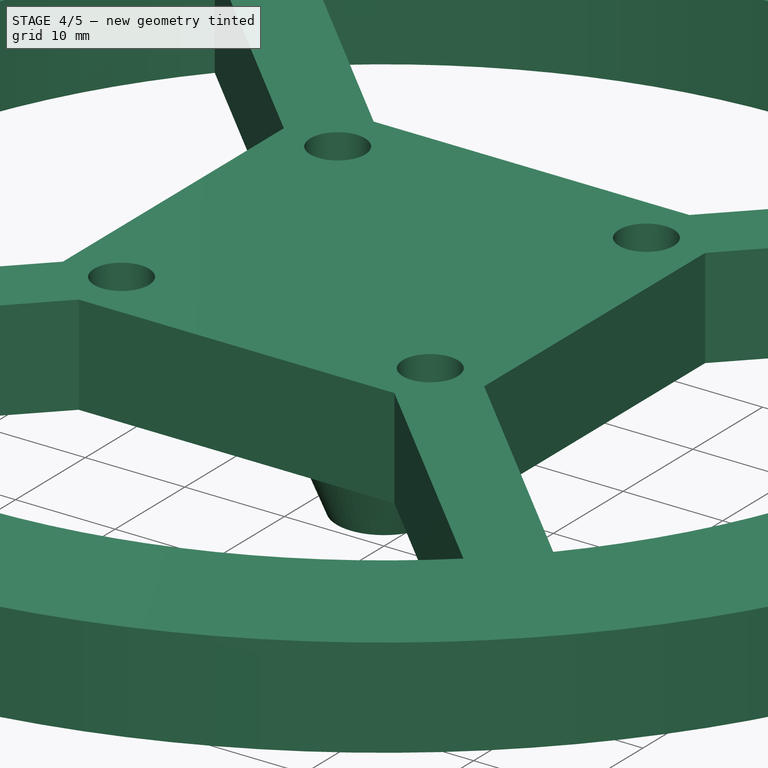
[diagram: stage 4 of 5 — iso view after this stage's code; geometry added in this stage tinted green]
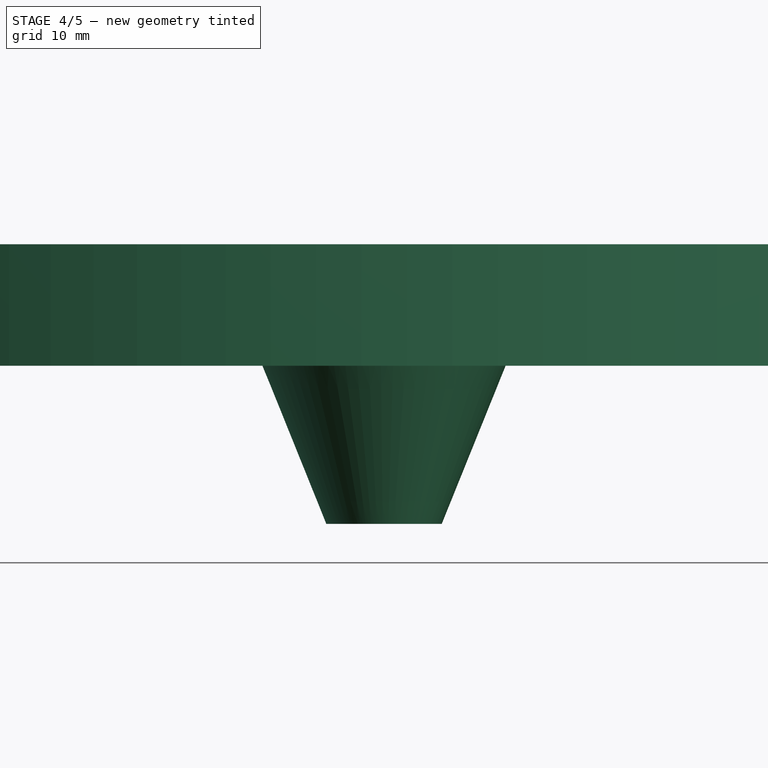
[diagram: stage 4 of 5 — front view after this stage's code; geometry added in this stage tinted green]
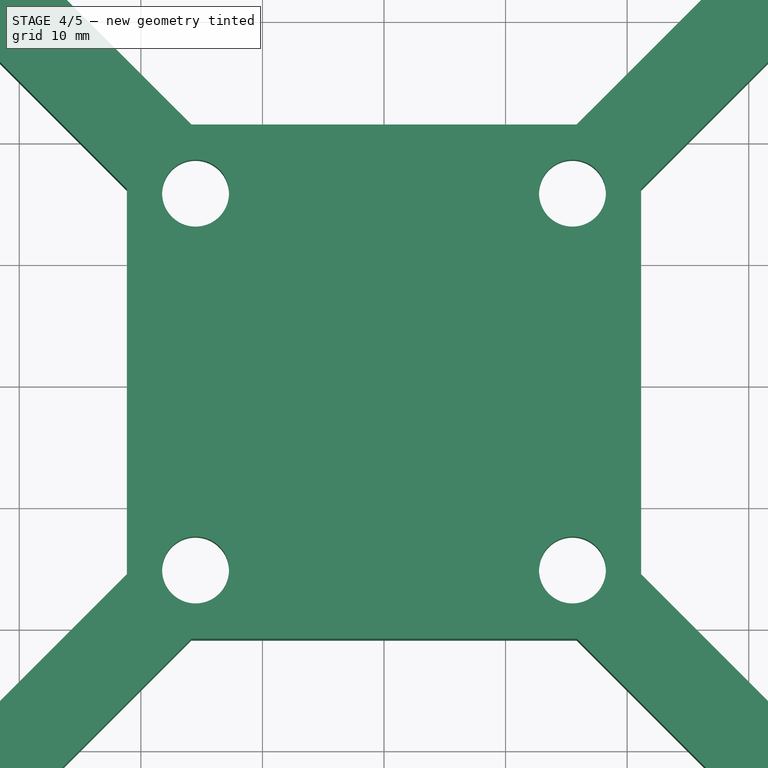
[diagram: stage 4 of 5 — top view after this stage's code; geometry added in this stage tinted green]
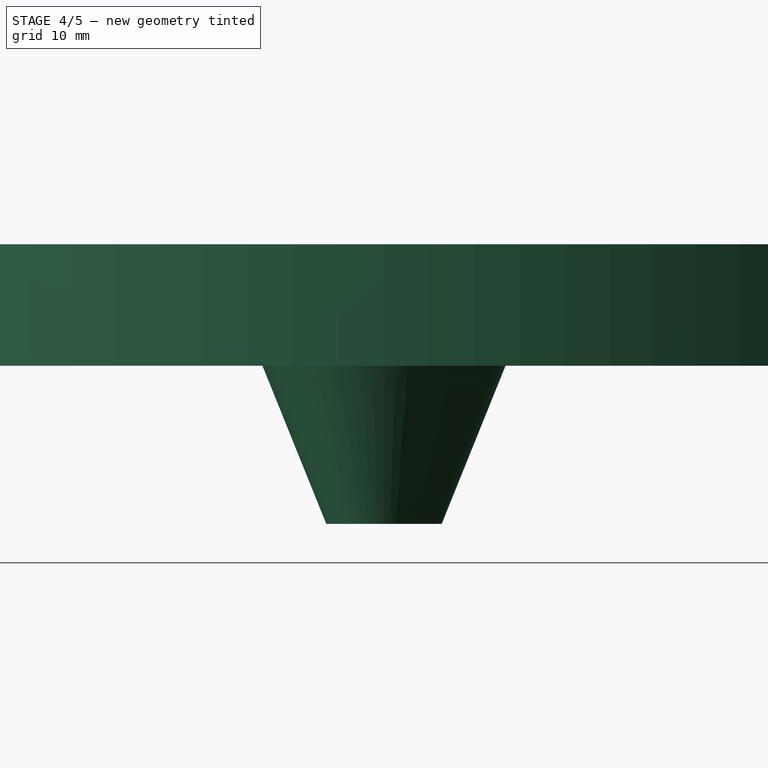
[diagram: stage 4 of 5 — right view after this stage's code; geometry added in this stage tinted green]
FEATURE [Sketcher::SketchObject] Sketch034
  AttachmentOffset = pos=(0,0,-6) rot=(0,0,1;0rad)
  ExternalGeometry = -> [Binder007]
  FullyConstrained = true
  MapMode = 5
  Placement = pos=(0,0,58) rot=(0,0,1;0rad)
  Support = -> [Binder007]
  sketch-geometry (5):
    g0: Circle CenterX=0 CenterY=0 CenterZ=0 NormalX=0 NormalY=0 NormalZ=1 AngleXU=0 Radius=10
    g1: LineSegment StartX=0 StartY=0 StartZ=0 EndX=-1.65 EndY=2.2 EndZ=0
    g2: LineSegment StartX=0 StartY=0 StartZ=0 EndX=1.65 EndY=2.2 EndZ=0
    g3: ArcOfCircle CenterX=0 CenterY=0 CenterZ=0 NormalX=0 NormalY=0 NormalZ=1 AngleXU=0 Radius=2.75 StartAngle=2.2143 EndAngle=7.21048
    g4: LineSegment StartX=-1.65 StartY=2.2 StartZ=0 EndX=1.65 EndY=2.2 EndZ=0
  constraints (12):
    c: Diameter(g0) = 20
    c: PointOnObject(g-4,g2)
    c: PointOnObject(g-4,g1)
    c: Coincident(g3,g1)
    c: Coincident(g3,g2)
    c: Coincident(g4,g3)
    c: Coincident(g4,g3)
    c: Distance(g-4,g3) = 0.25
    c: Coincident(g2,g3)
    c: Coincident(g1,g3)
    c: Coincident(g3,g0)
    c: Coincident(g-4,g0)
FEATURE [Sketcher::SketchObject] Sketch035
  AttachmentOffset = pos=(0,0,-19) rot=(0,0,1;0rad)
  ExternalGeometry = -> [Sketch034]
  FullyConstrained = true
  MapMode = 5
  Placement = pos=(0,0,45) rot=(0,0,1;0rad)
  Support = -> [Binder007]
  sketch-geometry (4):
    g0: Circle CenterX=0 CenterY=0 CenterZ=0 NormalX=0 NormalY=0 NormalZ=1 AngleXU=0 Radius=4.75
    g1: LineSegment StartX=2.75 StartY=0 StartZ=0 EndX=4.75 EndY=0 EndZ=0
    g2: ArcOfCircle CenterX=0 CenterY=0 CenterZ=0 NormalX=0 NormalY=0 NormalZ=1 AngleXU=0 Radius=2.75 StartAngle=2.2143 EndAngle=7.21048
    g3: LineSegment StartX=-1.65 StartY=2.2 StartZ=0 EndX=1.65 EndY=2.2 EndZ=0
  constraints (11):
    c: Coincident(g0,g-4)
    c: PointOnObject(g1,g-4)
    c: PointOnObject(g1,g0)
    c: Horizontal(g1)
    c: PointOnObject(g1,g-1)
    c: Distance(g1) = 2
    c: Coincident(g2,g0)
    c: Coincident(g2,g-4)
    c: Coincident(g3,g2)
    c: Coincident(g3,g2)
    c: Horizontal(g3)
FEATURE [PartDesign::AdditiveLoft] AdditiveLoft
  Closed = false
  Profile = -> Sketch035
  Ruled = false
  Sections = -> [Sketch034]
FEATURE [Sketcher::SketchObject] Sketch044
  AttachmentOffset = pos=(0,0,-4) rot=(0,0,1;0rad)
  ExternalGeometry = -> [PolarPattern002]
  FullyConstrained = true
  MapMode = 5
  Placement = pos=(0,61.25,9e-16) rot=(0,0.707107,0.707107;3.14159rad)
  Support = -> [PolarPattern002]
  sketch-geometry (7):
    g0: LineSegment StartX=1.58771 StartY=57.25 StartZ=0 EndX=-1.58771 EndY=57.25 EndZ=0
    g1: LineSegment StartX=-1.58771 StartY=57.25 StartZ=0 EndX=-3.17543 EndY=54.5 EndZ=0
    g2: LineSegment StartX=-3.17543 StartY=54.5 StartZ=0 EndX=-1.58771 EndY=51.75 EndZ=0
    g3: LineSegment StartX=-1.58771 StartY=51.75 StartZ=0 EndX=1.58771 EndY=51.75 EndZ=0
    g4: LineSegment StartX=1.58771 StartY=51.75 StartZ=0 EndX=3.17543 EndY=54.5 EndZ=0
    g5: LineSegment StartX=3.17543 StartY=54.5 StartZ=0 EndX=1.58771 EndY=57.25 EndZ=0
    g6: Circle CenterX=-3.6e-15 CenterY=54.5 CenterZ=0 NormalX=0 NormalY=0 NormalZ=1 AngleXU=0 Radius=3.17543
  constraints (16):
    c: Coincident(g0,g1)
    c: Coincident(g1,g2)
    c: Coincident(g2,g3)
    c: Coincident(g3,g4)
    c: Coincident(g4,g5)
    c: Coincident(g5,g0)
    c: Equal(g0, g1-g5) x5
    c: PointOnObject(g0,g6)
    c: PointOnObject(g1,g6)
    c: PointOnObject(g2,g6)
    c: PointOnObject(g3,g6)
    c: PointOnObject(g4,g6)
    c: PointOnObject(g5,g6)
    c: Coincident(g6,g-3)
    c: Horizontal(g0)
    c: Distance(g0,g4) = 5.5
FEATURE [PartDesign::Pocket] Pocket006
  BaseFeature = -> PolarPattern002
  Direction = (0,-1,2e-16)
  Length = 2.5
  Length2 = 5
  Profile = -> Sketch044
  ReferenceAxis = -> Sketch044 [N_Axis]
  Type = 0
FEATURE [Sketcher::SketchObject] Sketch045
  AttachmentOffset = pos=(0,0,-4) rot=(0,0,1;0rad)
  ExternalGeometry = -> [Pocket006]
  FullyConstrained = true
  MapMode = 5
  Placement = pos=(0,72.75,-9e-16) rot=(1,0,0;1.5708rad)
  Support = -> [Pocket006]
  sketch-geometry (1):
    g0: Circle CenterX=0 CenterY=54.5 CenterZ=0 NormalX=0 NormalY=0 NormalZ=1 AngleXU=0 Radius=2.625
  constraints (2):
    c: Coincident(g0,g-3)
    c: Diameter(g0) = 5.25
FEATURE [PartDesign::Pocket] Pocket007
  BaseFeature = -> Pocket006
  Direction = (0,1,-2e-16)
  Length = 2.5
  Length2 = 5
  Profile = -> Sketch045
  ReferenceAxis = -> Sketch045 [N_Axis]
  Type = 0
FEATURE [PartDesign::PolarPattern] PolarPattern003
  Angle = 360
  Axis = -> Z_Axis005
  BaseFeature = -> Pocket007
  Occurrences = 4
  Originals = -> [Pocket006]
FEATURE [PartDesign::PolarPattern] PolarPattern004
  Angle = 360
  Axis = -> Z_Axis005
  BaseFeature = -> PolarPattern003
  Occurrences = 4
  Originals = -> [Pocket007]
FEATURE [Sketcher::SketchObject] Sketch046
  ExternalGeometry = -> [Binder009,Binder010]
  FullyConstrained = true
  MapMode = 5
  Placement = pos=(0,0,58) rot=(0,0,1;0rad)
  Support = -> [AdditiveLoft]
  sketch-geometry (24):
    g0: Circle CenterX=0 CenterY=0 CenterZ=0 NormalX=0 NormalY=0 NormalZ=1 AngleXU=0 Radius=59
    g1: LineSegment StartX=15.8467 StartY=-21.15 StartZ=0 EndX=38.9833 EndY=-44.2866 EndZ=0
    g2: LineSegment StartX=21.15 StartY=-15.8467 StartZ=0 EndX=44.2866 EndY=-38.9833 EndZ=0
    g3: LineSegment StartX=15.8467 StartY=21.15 StartZ=0 EndX=38.9833 EndY=44.2866 EndZ=0
    g4: LineSegment StartX=21.15 StartY=15.8467 StartZ=0 EndX=44.2866 EndY=38.9833 EndZ=0
    g5: LineSegment StartX=15.8467 StartY=-21.15 StartZ=0 EndX=21.15 EndY=-15.8467 EndZ=0
    g6: LineSegment StartX=15.8467 StartY=21.15 StartZ=0 EndX=21.15 EndY=15.8467 EndZ=0
    g7: LineSegment StartX=21.15 StartY=15.8467 StartZ=0 EndX=21.15 EndY=-15.8467 EndZ=0
    g8: LineSegment StartX=-15.8467 StartY=21.15 StartZ=0 EndX=-38.9833 EndY=44.2866 EndZ=0
    g9: LineSegment StartX=-21.15 StartY=15.8467 StartZ=0 EndX=-44.2866 EndY=38.9833 EndZ=0
    g10: LineSegment StartX=-21.15 StartY=-15.8467 StartZ=0 EndX=-44.2866 EndY=-38.9833 EndZ=0
    g11: LineSegment StartX=-15.8467 StartY=-21.15 StartZ=0 EndX=-38.9833 EndY=-44.2866 EndZ=0
    g12: LineSegment StartX=-21.15 StartY=15.8467 StartZ=0 EndX=-15.8467 EndY=21.15 EndZ=0
    g13: LineSegment StartX=-21.15 StartY=-15.8467 StartZ=0 EndX=-15.8467 EndY=-21.15 EndZ=0
    g14: LineSegment StartX=-15.8467 StartY=21.15 StartZ=0 EndX=15.8467 EndY=21.15 EndZ=0
    g15: LineSegment StartX=-21.15 StartY=15.8467 StartZ=0 EndX=-21.15 EndY=-15.8467 EndZ=0
    g16: LineSegment StartX=-15.8467 StartY=-21.15 StartZ=0 EndX=15.8467 EndY=-21.15 EndZ=0
    g17: ArcOfCircle CenterX=0 CenterY=0 CenterZ=0 NormalX=0 NormalY=0 NormalZ=1 AngleXU=0 Radius=59 StartAngle=0.849 EndAngle=2.29259
    g18: ArcOfCircle CenterX=0 CenterY=0 CenterZ=0 NormalX=0 NormalY=0 NormalZ=1 AngleXU=0 Radius=59 StartAngle=2.4198 EndAngle=3.86339
    g19: ArcOfCircle CenterX=0 CenterY=0 CenterZ=0 NormalX=0 NormalY=0 NormalZ=1 AngleXU=0 Radius=59 StartAngle=3.99059 EndAngle=5.43418
    g20: ArcOfCircle CenterX=0 CenterY=0 CenterZ=0 NormalX=0 NormalY=0 NormalZ=1 AngleXU=0 Radius=59 StartAngle=5.56139 EndAngle=7.00498
    g21: LineSegment StartX=21.15 StartY=-17.6145 StartZ=0 EndX=20.2661 EndY=-16.7306 EndZ=0
    g22: LineSegment StartX=17.6145 StartY=-21.15 StartZ=0 EndX=16.7306 EndY=-20.2661 EndZ=0
    g23: Circle CenterX=0 CenterY=0 CenterZ=0 NormalX=0 NormalY=0 NormalZ=1 AngleXU=0 Radius=75
  constraints (66):
    c: Coincident(g0,g-10)
    c: PointOnObject(g-8,g0)
    c: PointOnObject(g1,g-5)
    c: PointOnObject(g1,g-8)
    c: PointOnObject(g2,g-4)
    c: PointOnObject(g2,g0)
    c: PointOnObject(g3,g-3)
    c: PointOnObject(g3,g0)
    c: PointOnObject(g4,g-4)
    c: Parallel(g2,g1)
    c: Coincident(g5,g1)
    c: Coincident(g5,g2)
    c: Perpendicular(g2,g5)
    c: Distance(g5) = 7.5
    c: Coincident(g6,g3)
    c: Coincident(g6,g4)
    c: Equal(g6,g5)
    c: Parallel(g3,g4)
    c: Perpendicular(g4,g6)
    c: Coincident(g7,g4)
    c: Coincident(g7,g2)
    c: PointOnObject(g8,g-3)
    c: PointOnObject(g9,g-6)
    c: PointOnObject(g9,g0)
    c: PointOnObject(g10,g-6)
    c: PointOnObject(g11,g-5)
    c: Coincident(g12,g9)
    c: Coincident(g12,g8)
    c: Coincident(g13,g10)
    c: Coincident(g13,g11)
    c: Equal(g6,g12)
    c: Equal(g12,g13)
    c: Parallel(g8,g9)
    c: Parallel(g10,g11)
    c: Perpendicular(g10,g13)
    c: Perpendicular(g12,g8)
    c: Coincident(g14,g8)
    c: Coincident(g14,g3)
    c: Coincident(g15,g9)
    c: Coincident(g15,g10)
    c: Coincident(g16,g11)
    c: Coincident(g16,g1)
    c: Equal(g16,g7)
    c: Equal(g7,g14)
    c: Equal(g14,g15)
    c: Coincident(g19,g11)
    c: Coincident(g19,g1)
    c: Coincident(g19,g0)
    c: Coincident(g20,g2)
    c: Coincident(g20,g4)
    c: Coincident(g20,g19)
    c: Coincident(g17,g3)
    c: Coincident(g17,g8)
    c: Coincident(g17,g19)
    c: Coincident(g18,g9)
    c: Coincident(g18,g10)
    c: Coincident(g21,g-11)
    c: PointOnObject(g21,g5)
    c: Perpendicular(g5,g21)
    c: Coincident(g22,g-11)
    c: PointOnObject(g22,g5)
    c: Perpendicular(g5,g22)
    c: Coincident(g18,g17)
    c: Coincident(g23,g17)
    c: PointOnObject(g-9,g23)
    c: Equal(g21,g22)
FEATURE [PartDesign::Pad] Pad022
  BaseFeature = -> AdditiveLoft
  Direction = (0,0,1)
  Length = 10
  Length2 = 10
  Profile = -> Sketch046
  ReferenceAxis = -> Sketch046 [N_Axis]
  Type = 0
FEATURE [Sketcher::SketchObject] Sketch051
  ExternalGeometry = -> [Binder009]
  FullyConstrained = true
  MapMode = 5
  Placement = pos=(0,0,58) rot=(1,0,0;3.14159rad)
  Support = -> [Pad022]
  sketch-geometry (4):
    g0: Circle CenterX=15.5 CenterY=15.5 CenterZ=0 NormalX=0 NormalY=0 NormalZ=1 AngleXU=0 Radius=2.75
    g1: Circle CenterX=-15.5 CenterY=15.5 CenterZ=0 NormalX=0 NormalY=0 NormalZ=1 AngleXU=0 Radius=2.75
    g2: Circle CenterX=15.5 CenterY=-15.5 CenterZ=0 NormalX=0 NormalY=0 NormalZ=1 AngleXU=0 Radius=2.75
    g3: Circle CenterX=-15.5 CenterY=-15.5 CenterZ=0 NormalX=0 NormalY=0 NormalZ=1 AngleXU=0 Radius=2.75
  constraints (8):
    c: Coincident(g0,g-3)
    c: Coincident(g1,g-4)
    c: Coincident(g2,g-6)
    c: Coincident(g3,g-5)
    c: Equal(g1,g-4)
    c: Equal(g0,g1)
    c: Equal(g1,g3)
    c: Equal(g3,g2)
FEATURE [PartDesign::Pocket] Pocket008
  BaseFeature = -> Pad022
  Direction = (0,0,1)
  Length = 10
  Length2 = 5
  Profile = -> Sketch051
  ReferenceAxis = -> Sketch051 [N_Axis]
  Type = 0
FEATURE [Sketcher::SketchObject] Sketch052
  ExternalGeometry = -> [Pocket008]
  FullyConstrained = true
  MapMode = 5
  Placement = pos=(0,0,58) rot=(1,0,0;3.14159rad)
  Support = -> [Pocket008]
  sketch-geometry (30):
    g0: LineSegment StartX=20.2403 StartY=16.7701 StartZ=0 EndX=16.7701 EndY=20.2403 EndZ=0
    g1: LineSegment StartX=16.7701 StartY=20.2403 StartZ=0 EndX=12.0299 EndY=18.9701 EndZ=0
    g2: LineSegment StartX=12.0299 StartY=18.9701 StartZ=0 EndX=10.7597 EndY=14.2299 EndZ=0
    g3: LineSegment StartX=10.7597 StartY=14.2299 StartZ=0 EndX=14.2299 EndY=10.7597 EndZ=0
    g4: LineSegment StartX=14.2299 StartY=10.7597 StartZ=0 EndX=18.9701 EndY=12.0299 EndZ=0
    g5: LineSegment StartX=18.9701 StartY=12.0299 StartZ=0 EndX=20.2403 EndY=16.7701 EndZ=0
    g6: Circle CenterX=15.5 CenterY=15.5 CenterZ=0 NormalX=0 NormalY=0 NormalZ=1 AngleXU=0 Radius=4.90748
    g7: LineSegment StartX=16.7701 StartY=-20.2403 StartZ=0 EndX=20.2403 EndY=-16.7701 EndZ=0
    g8: LineSegment StartX=20.2403 StartY=-16.7701 StartZ=0 EndX=18.9701 EndY=-12.0299 EndZ=0
    g9: LineSegment StartX=18.9701 StartY=-12.0299 StartZ=0 EndX=14.2299 EndY=-10.7597 EndZ=0
    g10: LineSegment StartX=14.2299 StartY=-10.7597 StartZ=0 EndX=10.7597 EndY=-14.2299 EndZ=0
    g11: LineSegment StartX=10.7597 StartY=-14.2299 StartZ=0 EndX=12.0299 EndY=-18.9701 EndZ=0
    g12: LineSegment StartX=12.0299 StartY=-18.9701 StartZ=0 EndX=16.7701 EndY=-20.2403 EndZ=0
    g13: Circle CenterX=15.5 CenterY=-15.5 CenterZ=0 NormalX=0 NormalY=0 NormalZ=1 AngleXU=0 Radius=4.90748
    g14: LineSegment StartX=-16.7701 StartY=-20.2403 StartZ=0 EndX=-12.0299 EndY=-18.9701 EndZ=0
    g15: LineSegment StartX=-12.0299 StartY=-18.9701 StartZ=0 EndX=-10.7597 EndY=-14.2299 EndZ=0
    g16: LineSegment StartX=-10.7597 StartY=-14.2299 StartZ=0 EndX=-14.2299 EndY=-10.7597 EndZ=0
    g17: LineSegment StartX=-14.2299 StartY=-10.7597 StartZ=0 EndX=-18.9701 EndY=-12.0299 EndZ=0
    g18: LineSegment StartX=-18.9701 StartY=-12.0299 StartZ=0 EndX=-20.2403 EndY=-16.7701 EndZ=0
    g19: LineSegment StartX=-20.2403 StartY=-16.7701 StartZ=0 EndX=-16.7701 EndY=-20.2403 EndZ=0
    g20: Circle CenterX=-15.5 CenterY=-15.5 CenterZ=0 NormalX=0 NormalY=0 NormalZ=1 AngleXU=0 Radius=4.90748
    g21: LineSegment StartX=-20.2403 StartY=16.7701 StartZ=0 EndX=-18.9701 EndY=12.0299 EndZ=0
    g22: LineSegment StartX=-18.9701 StartY=12.0299 StartZ=0 EndX=-14.2299 EndY=10.7597 EndZ=0
    g23: LineSegment StartX=-14.2299 StartY=10.7597 StartZ=0 EndX=-10.7597 EndY=14.2299 EndZ=0
    g24: LineSegment StartX=-10.7597 StartY=14.2299 StartZ=0 EndX=-12.0299 EndY=18.9701 EndZ=0
    g25: LineSegment StartX=-12.0299 StartY=18.9701 StartZ=0 EndX=-16.7701 EndY=20.2403 EndZ=0
    g26: LineSegment StartX=-16.7701 StartY=20.2403 StartZ=0 EndX=-20.2403 EndY=16.7701 EndZ=0
    g27: Circle CenterX=-15.5 CenterY=15.5 CenterZ=0 NormalX=0 NormalY=0 NormalZ=1 AngleXU=0 Radius=4.90748
    g28: LineSegment StartX=-21.15 StartY=15.8467 StartZ=0 EndX=-15.8467 EndY=21.15 EndZ=0
    g29: LineSegment StartX=15.8467 StartY=21.15 StartZ=0 EndX=21.15 EndY=15.8467 EndZ=0
  constraints (68):
    c: Coincident(g0,g1)
    c: Coincident(g1,g2)
    c: Coincident(g2,g3)
    c: Coincident(g3,g4)
    c: Coincident(g4,g5)
    c: Coincident(g5,g0)
    c: Equal(g0, g1-g5) x5
    c: PointOnObject(g0,g6)
    c: PointOnObject(g1,g6)
    c: PointOnObject(g2,g6)
    c: PointOnObject(g3,g6)
    c: PointOnObject(g4,g6)
    c: PointOnObject(g5,g6)
    c: Coincident(g6,g-3)
    c: Coincident(g7,g8)
    c: Coincident(g8,g9)
    c: Coincident(g9,g10)
    c: Coincident(g10,g11)
    c: Coincident(g11,g12)
    c: Coincident(g12,g7)
    c: Equal(g7, g8-g12) x5
    c: PointOnObject(g7,g13)
    c: PointOnObject(g8,g13)
    c: PointOnObject(g9,g13)
    c: PointOnObject(g10,g13)
    c: PointOnObject(g11,g13)
    c: PointOnObject(g12,g13)
    c: Coincident(g13,g-7)
    c: Coincident(g14,g15)
    c: Coincident(g15,g16)
    c: Coincident(g16,g17)
    c: Coincident(g17,g18)
    c: Coincident(g18,g19)
    c: Coincident(g19,g14)
    c: Equal(g14, g15-g19) x5
    c: PointOnObject(g14,g20)
    c: PointOnObject(g15,g20)
    c: PointOnObject(g16,g20)
    c: PointOnObject(g17,g20)
    c: PointOnObject(g18,g20)
    c: PointOnObject(g19,g20)
    c: Coincident(g20,g-6)
    c: Coincident(g21,g22)
    c: Coincident(g22,g23)
    c: Coincident(g23,g24)
    c: Coincident(g24,g25)
    c: Coincident(g25,g26)
    c: Coincident(g26,g21)
    c: Equal(g21, g22-g26) x5
    c: PointOnObject(g21,g27)
    c: PointOnObject(g22,g27)
    c: PointOnObject(g23,g27)
    c: PointOnObject(g24,g27)
    c: PointOnObject(g25,g27)
    c: PointOnObject(g26,g27)
    c: Coincident(g27,g-4)
    c: Distance(g24,g22) = 8.5
    c: Coincident(g28,g-11)
    c: Coincident(g28,g-10)
    c: Coincident(g29,g-9)
    c: Coincident(g29,g-8)
    c: Parallel(g29,g0)
    c: Parallel(g26,g28)
    c: Parallel(g0,g16)
    c: Parallel(g26,g10)
    c: Equal(g24,g0)
    c: Equal(g0,g7)
    c: Equal(g7,g19)
FEATURE [PartDesign::Pocket] Pocket009
  BaseFeature = -> Pocket008
  Direction = (0,0,1)
  Length = 4.1
  Length2 = 5
  Profile = -> Sketch052
  ReferenceAxis = -> Sketch052 [N_Axis]
  Type = 0
FEATURE [Sketcher::SketchObject] Sketch053
  ExternalGeometry = -> [PolarPattern004]
  FullyConstrained = true
  MapMode = 5
  Placement = pos=(0,0,57) rot=(0,0,1;0rad)
  Support = -> [PolarPattern004]
  sketch-geometry (4):
    g0: LineSegment StartX=21.15 StartY=2.15 StartZ=0 EndX=17.95 EndY=2.15 EndZ=0
    g1: LineSegment StartX=17.95 StartY=2.15 StartZ=0 EndX=17.95 EndY=-2.15 EndZ=0
    g2: LineSegment StartX=17.95 StartY=-2.15 StartZ=0 EndX=21.15 EndY=-2.15 EndZ=0
    g3: LineSegment StartX=21.15 StartY=-2.15 StartZ=0 EndX=21.15 EndY=2.15 EndZ=0
  constraints (11):
    c: Coincident(g0,g1)
    c: Coincident(g1,g2)
    c: Coincident(g2,g3)
    c: Coincident(g3,g0)
    c: Horizontal(g0)
    c: Horizontal(g2)
    c: Vertical(g1)
    c: PointOnObject(g0,g-3)
    c: Distance(g3) = 4.3
    c: Distance(g0) = 3.2
    c: Symmetric(g0,g2,g-1)
FEATURE [PartDesign::Pocket] Pocket010
  BaseFeature = -> PolarPattern004
  Direction = (0,0,-1)
  Length = 2
  Length2 = 5
  Profile = -> Sketch053
  ReferenceAxis = -> Sketch053 [N_Axis]
  Type = 0
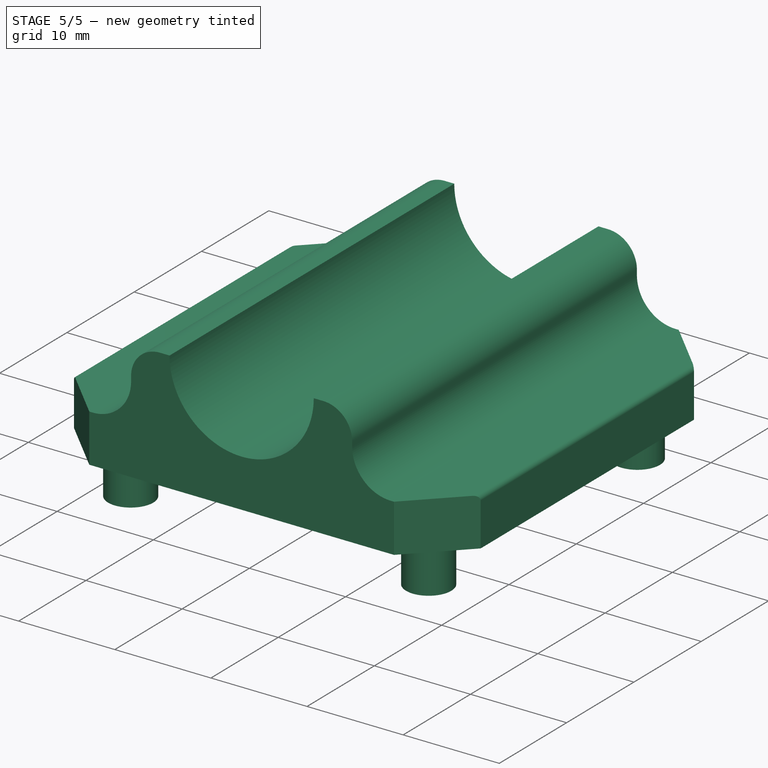
[diagram: stage 5 of 5 — iso view after this stage's code; geometry added in this stage tinted green]
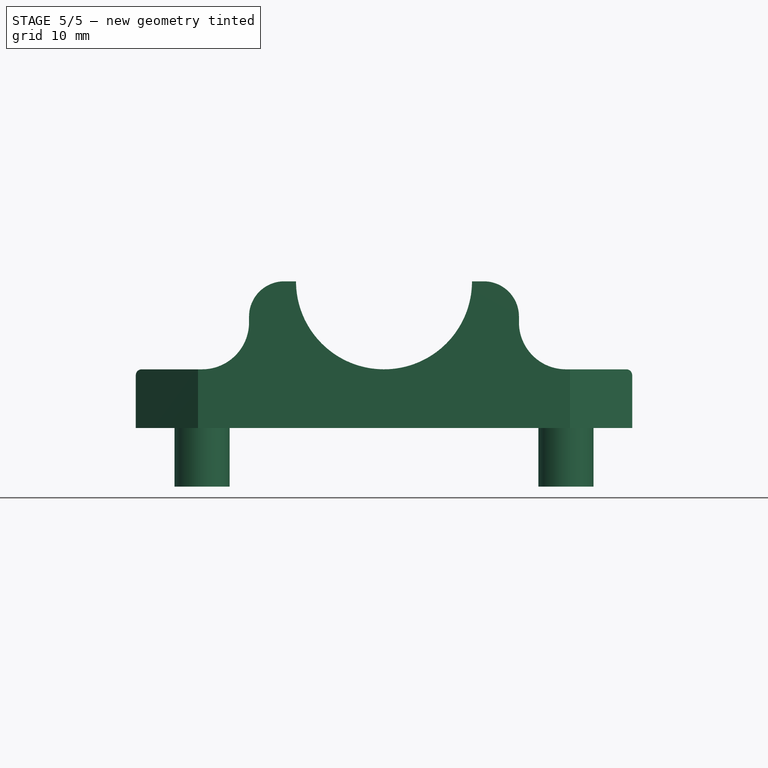
[diagram: stage 5 of 5 — front view after this stage's code; geometry added in this stage tinted green]
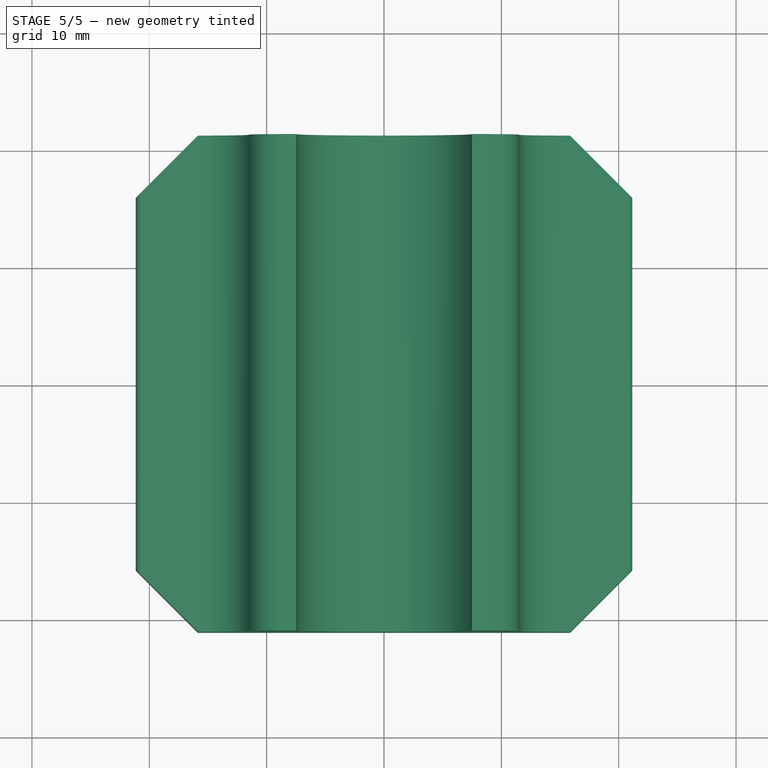
[diagram: stage 5 of 5 — top view after this stage's code; geometry added in this stage tinted green]
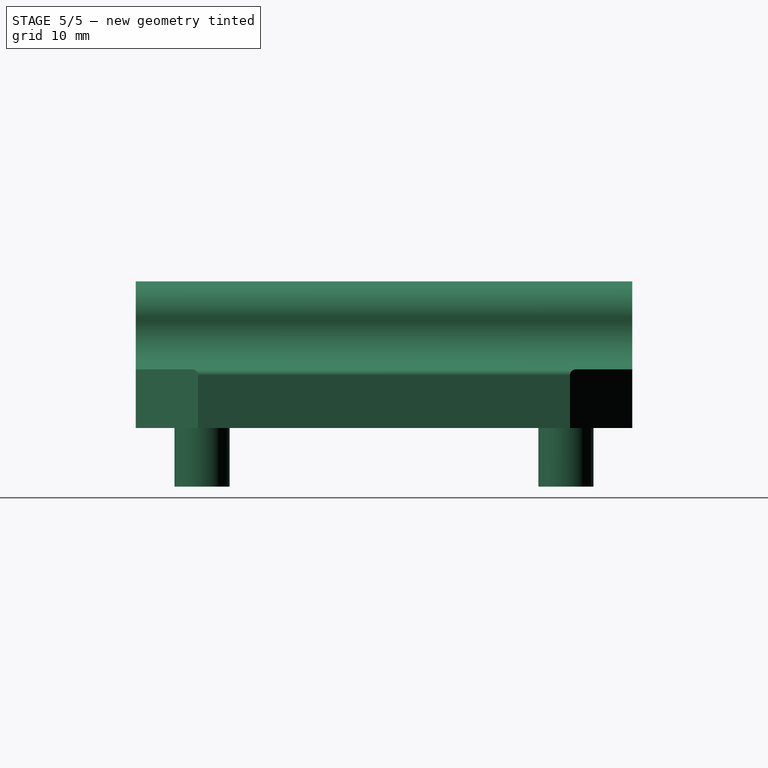
[diagram: stage 5 of 5 — right view after this stage's code; geometry added in this stage tinted green]
FEATURE [PartDesign::Body] Body005  label="Base-Motor-Connector"
  Group = -> [Binder005,Binder006,Sketch031,Pad018,Sketch032,Pad019,Sketch036,Pocket003,Sketch037,Sketch038,Sketch039,DatumPlane,Sketch040,Sketch041,Pad020,PolarPattern,Pad021,Sketch042,Pocket004,PolarPattern001,Sketch043,Pocket005,PolarPattern002,Sketch044,Pocket006,Sketch045,Pocket007,PolarPattern003,PolarPattern004,Sketch053,Pocket010]
  Origin = -> Origin005
  Tip = -> Pocket010
FEATURE [Sketcher::SketchObject] Sketch054
  ExternalGeometry = -> [Binder011]
  FullyConstrained = true
  MapMode = 5
  Placement = pos=(0,0,58) rot=(1,0,0;3.14159rad)
  Support = -> [Pocket009]
  sketch-geometry (1):
    g0: Circle CenterX=18.9 CenterY=0 CenterZ=0 NormalX=0 NormalY=0 NormalZ=1 AngleXU=0 Radius=2.25
  constraints (3):
    c: PointOnObject(g0,g-1)
    c: Diameter(g0) = 4.5
    c: Tangent(g0,g-4)
FEATURE [PartDesign::Pocket] Pocket011
  BaseFeature = -> Pocket009
  Direction = (0,0,1)
  Length = 2
  Length2 = 5
  Profile = -> Sketch054
  ReferenceAxis = -> Sketch054 [N_Axis]
  Type = 0
FEATURE [Sketcher::SketchObject] Sketch055
  ExternalGeometry = -> [Pocket011]
  FullyConstrained = true
  MapMode = 5
  Placement = pos=(0,0,58) rot=(1,0,0;3.14159rad)
  Support = -> [Pocket011]
  sketch-geometry (2):
    g0: ArcOfCircle CenterX=0 CenterY=0 CenterZ=0 NormalX=0 NormalY=0 NormalZ=1 AngleXU=0 Radius=2.75 StartAngle=5.35589 EndAngle=10.3521
    g1: LineSegment StartX=-1.65 StartY=-2.2 StartZ=0 EndX=1.65 EndY=-2.2 EndZ=0
  constraints (5):
    c: Coincident(g0,g-3)
    c: Coincident(g0,g-4)
    c: Coincident(g1,g0)
    c: Coincident(g1,g0)
    c: Horizontal(g1)
FEATURE [PartDesign::Pocket] Pocket012
  BaseFeature = -> Pocket011
  Direction = (0,0,1)
  Length = 10
  Length2 = 5
  Profile = -> Sketch055
  ReferenceAxis = -> Sketch055 [N_Axis]
  Type = 0
FEATURE [PartDesign::Body] Body006  label="Rotor-1"
  Group = -> [Binder007,Sketch034,Sketch035,AdditiveLoft,Sketch046,Binder009,Binder010,Pad022,Sketch051,Pocket008,Sketch052,Pocket009,Binder011,Sketch054,Pocket011,Sketch055,Pocket012]
  Origin = -> Origin006
  Tip = -> Pocket012
FEATURE [PartDesign::SubShapeBinder] Binder
  BindCopyOnChange = 0
  BindMode = 0
  ClaimChildren = false
  Context = -> Body [Binder.]
  Fuse = false
  MakeFace = true
  OffsetFill = false
  OffsetIntersection = false
  OffsetJoinType = 0
  OffsetOpenResult = false
  PartialLoad = false
  Relative = true
  Support = -> [Body006[Pocket012.Face3]]
  _Version = 2
FEATURE [Sketcher::SketchObject] Sketch
  ExternalGeometry = -> [Binder]
  FullyConstrained = true
  MapMode = 5
  Placement = pos=(0,0,68) rot=(0,0,1;0rad)
  Support = -> [Binder]
  sketch-geometry (8):
    g0: LineSegment StartX=-21.15 StartY=15.8467 StartZ=0 EndX=-15.8467 EndY=21.15 EndZ=0
    g1: LineSegment StartX=-15.8467 StartY=21.15 StartZ=0 EndX=15.8467 EndY=21.15 EndZ=0
    g2: LineSegment StartX=15.8467 StartY=21.15 StartZ=0 EndX=21.15 EndY=15.8467 EndZ=0
    g3: LineSegment StartX=21.15 StartY=15.8467 StartZ=0 EndX=21.15 EndY=-15.8467 EndZ=0
    g4: LineSegment StartX=21.15 StartY=-15.8467 StartZ=0 EndX=15.8467 EndY=-21.15 EndZ=0
    g5: LineSegment StartX=15.8467 StartY=-21.15 StartZ=0 EndX=-15.8467 EndY=-21.15 EndZ=0
    g6: LineSegment StartX=-15.8467 StartY=-21.15 StartZ=0 EndX=-21.15 EndY=-15.8467 EndZ=0
    g7: LineSegment StartX=-21.15 StartY=-15.8467 StartZ=0 EndX=-21.15 EndY=15.8467 EndZ=0
  constraints (16):
    c: Coincident(g0,g-9)
    c: Coincident(g0,g-11)
    c: Coincident(g1,g0)
    c: Coincident(g1,g-11)
    c: Coincident(g2,g1)
    c: Coincident(g2,g-10)
    c: Coincident(g3,g2)
    c: Coincident(g3,g-10)
    c: Coincident(g4,g3)
    c: Coincident(g4,g-8)
    c: Coincident(g5,g4)
    c: Coincident(g5,g-8)
    c: Coincident(g6,g5)
    c: Coincident(g6,g-9)
    c: Coincident(g7,g6)
    c: Coincident(g7,g0)
FEATURE [PartDesign::Pad] Pad
  Direction = (0,0,1)
  Length = 5
  Length2 = 10
  Profile = -> Sketch
  ReferenceAxis = -> Sketch [N_Axis]
  Type = 0
FEATURE [Sketcher::SketchObject] Sketch056
  ExternalGeometry = -> [Binder]
  FullyConstrained = true
  MapMode = 5
  Placement = pos=(0,0,68) rot=(1,0,0;3.14159rad)
  Support = -> [Pad]
  sketch-geometry (4):
    g0: Circle CenterX=15.5 CenterY=15.5 CenterZ=0 NormalX=0 NormalY=0 NormalZ=1 AngleXU=0 Radius=2.35
    g1: Circle CenterX=15.5 CenterY=-15.5 CenterZ=0 NormalX=0 NormalY=0 NormalZ=1 AngleXU=0 Radius=2.35
    g2: Circle CenterX=-15.5 CenterY=-15.5 CenterZ=0 NormalX=0 NormalY=0 NormalZ=1 AngleXU=0 Radius=2.35
    g3: Circle CenterX=-15.5 CenterY=15.5 CenterZ=0 NormalX=0 NormalY=0 NormalZ=1 AngleXU=0 Radius=2.35
  constraints (8):
    c: Coincident(g0,g-3)
    c: Coincident(g1,g-6)
    c: Coincident(g2,g-5)
    c: Coincident(g3,g-4)
    c: Diameter(g0) = 4.7
    c: Equal(g0,g3)
    c: Equal(g3,g2)
    c: Equal(g2,g1)
FEATURE [PartDesign::Pad] Pad023
  BaseFeature = -> Pad
  Direction = (0,0,-1)
  Length = 5
  Length2 = 10
  Profile = -> Sketch056
  ReferenceAxis = -> Sketch056 [N_Axis]
  Type = 0
FEATURE [Sketcher::SketchObject] Sketch057
  ExternalGeometry = -> [Pad023]
  FullyConstrained = true
  MapMode = 5
  Placement = pos=(0,0,73) rot=(0,0,1;0rad)
  Support = -> [Pad023]
  sketch-geometry (4):
    g0: LineSegment StartX=-11.5 StartY=21.15 StartZ=0 EndX=11.5 EndY=21.15 EndZ=0
    g1: LineSegment StartX=11.5 StartY=21.15 StartZ=0 EndX=11.5 EndY=-21.15 EndZ=0
    g2: LineSegment StartX=11.5 StartY=-21.15 StartZ=0 EndX=-11.5 EndY=-21.15 EndZ=0
    g3: LineSegment StartX=-11.5 StartY=-21.15 StartZ=0 EndX=-11.5 EndY=21.15 EndZ=0
  constraints (11):
    c: Coincident(g0,g1)
    c: Coincident(g1,g2)
    c: Coincident(g2,g3)
    c: Coincident(g3,g0)
    c: Horizontal(g2)
    c: Vertical(g1)
    c: Vertical(g3)
    c: PointOnObject(g0,g-3)
    c: PointOnObject(g1,g-4)
    c: Symmetric(g0,g0,g-2)
    c: Distance(g0) = 23
FEATURE [PartDesign::Pad] Pad024
  BaseFeature = -> Pad023
  Direction = (0,0,1)
  Length = 7.5
  Length2 = 10
  Profile = -> Sketch057
  ReferenceAxis = -> Sketch057 [N_Axis]
  Type = 0
FEATURE [Sketcher::SketchObject] Sketch058
  ExternalGeometry = -> [Pad024]
  FullyConstrained = true
  MapMode = 5
  Placement = pos=(0,-21.15,0) rot=(1,0,0;1.5708rad)
  Support = -> [Pad024]
  sketch-geometry (1):
    g0: Circle CenterX=0 CenterY=80.5 CenterZ=0 NormalX=0 NormalY=0 NormalZ=1 AngleXU=0 Radius=7.5
  constraints (3):
    c: PointOnObject(g0,g-3)
    c: Diameter(g0) = 15
    c: PointOnObject(g0,g-2)
FEATURE [PartDesign::Pocket] Pocket013
  BaseFeature = -> Pad024
  Direction = (0,1,-2e-16)
  Length = 100
  Length2 = 5
  Profile = -> Sketch058
  ReferenceAxis = -> Sketch058 [N_Axis]
  Type = 0
FEATURE [PartDesign::Fillet] Fillet
  Base = -> Pocket013 [Edge38,Edge23]
  BaseFeature = -> Pocket013
  Radius = 4
  SupportTransform = false
  UseAllEdges = false
FEATURE [PartDesign::Fillet] Fillet002
  Base = -> Fillet [Edge51,Edge67]
  BaseFeature = -> Fillet
  Radius = 3
  SupportTransform = false
  UseAllEdges = false
FEATURE [PartDesign::Fillet] Fillet003
  Base = -> Fillet002 [Edge54,Edge32]
  BaseFeature = -> Fillet002
  Radius = 0.5
  SupportTransform = false
  UseAllEdges = false
FEATURE [PartDesign::Body] Body  label="Laser-Mount"
  Group = -> [Binder,Sketch,Pad,Sketch056,Pad023,Sketch057,Pad024,Sketch058,Pocket013,Fillet,Fillet002,Fillet003]
  Origin = -> Origin
  Tip = -> Fillet003
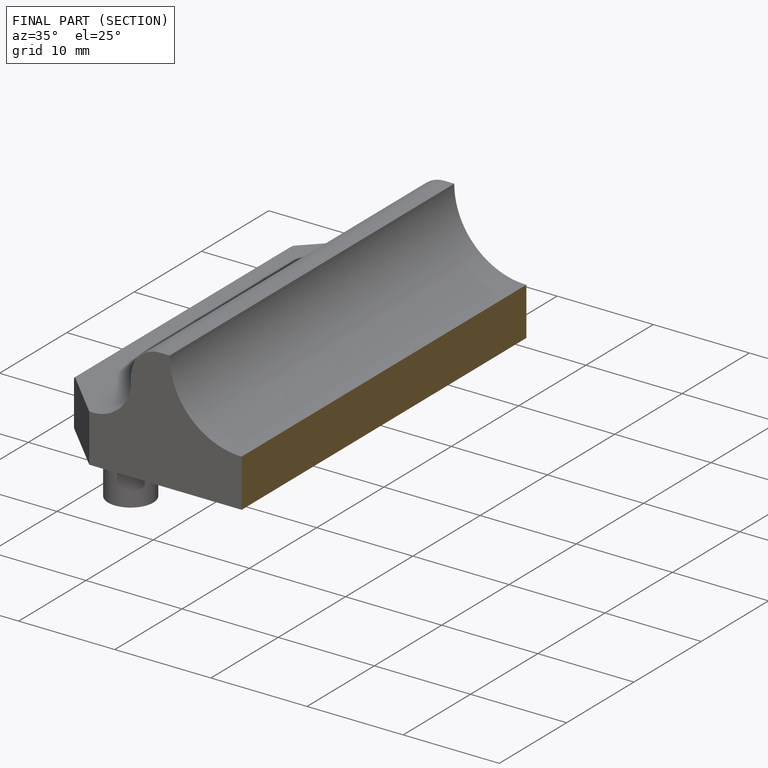
[diagram: finished part — half-section view (interior)]
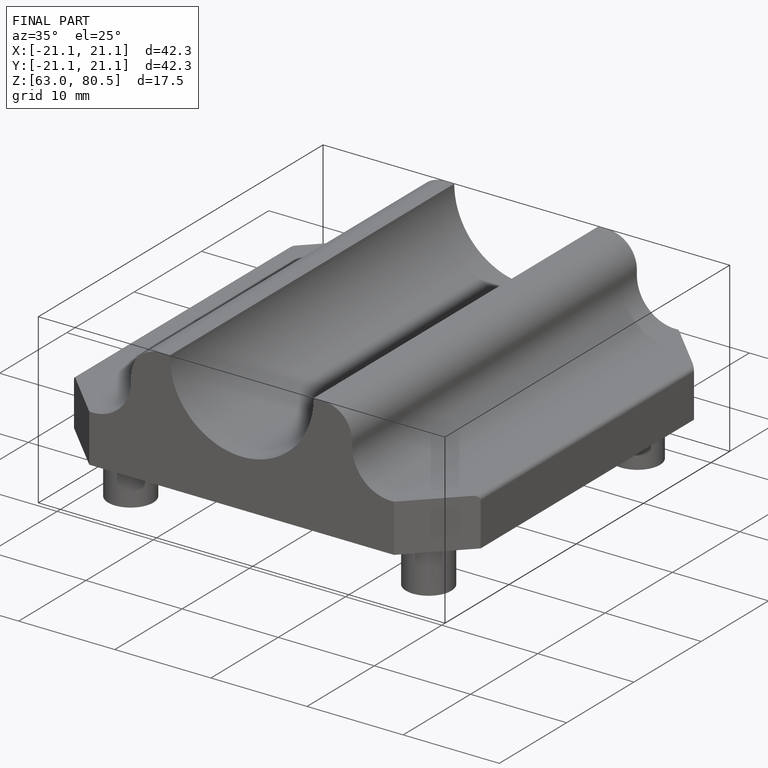
[diagram: finished part — iso view with bounding-box wireframe]
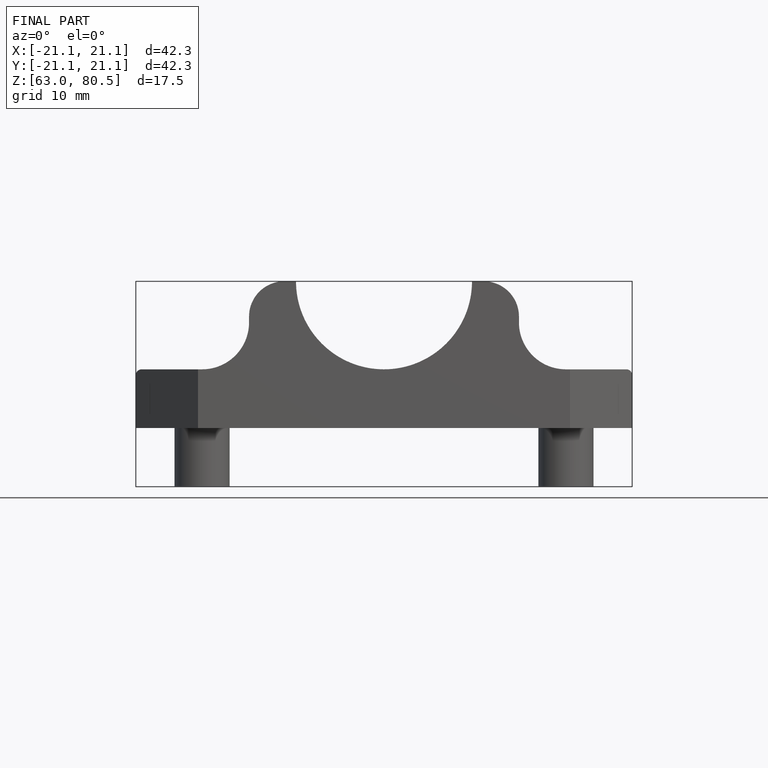
[diagram: finished part — front view with bounding-box wireframe]
